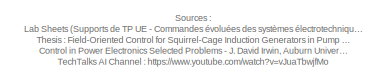
[diagram: root canvas - part 1/4, top center region]
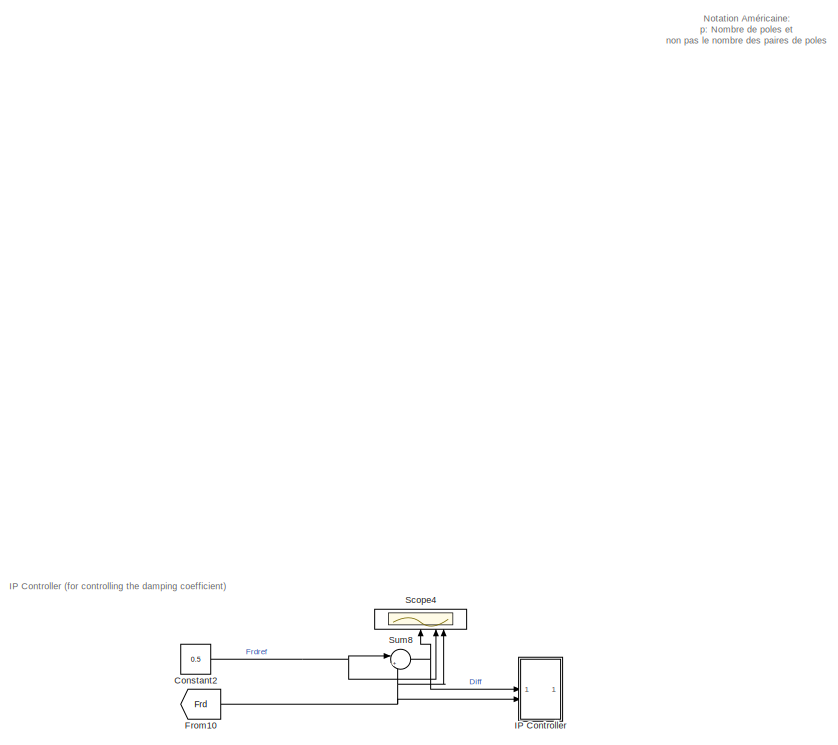
[diagram: root canvas - part 2/4, middle left region]
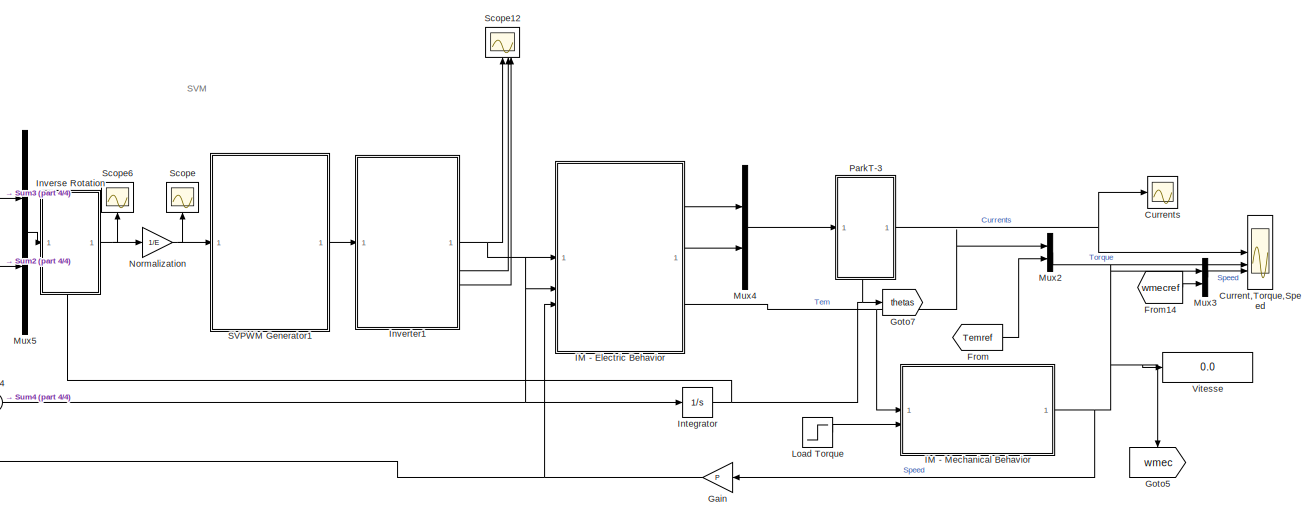
[diagram: root canvas - part 3/4, middle right region]
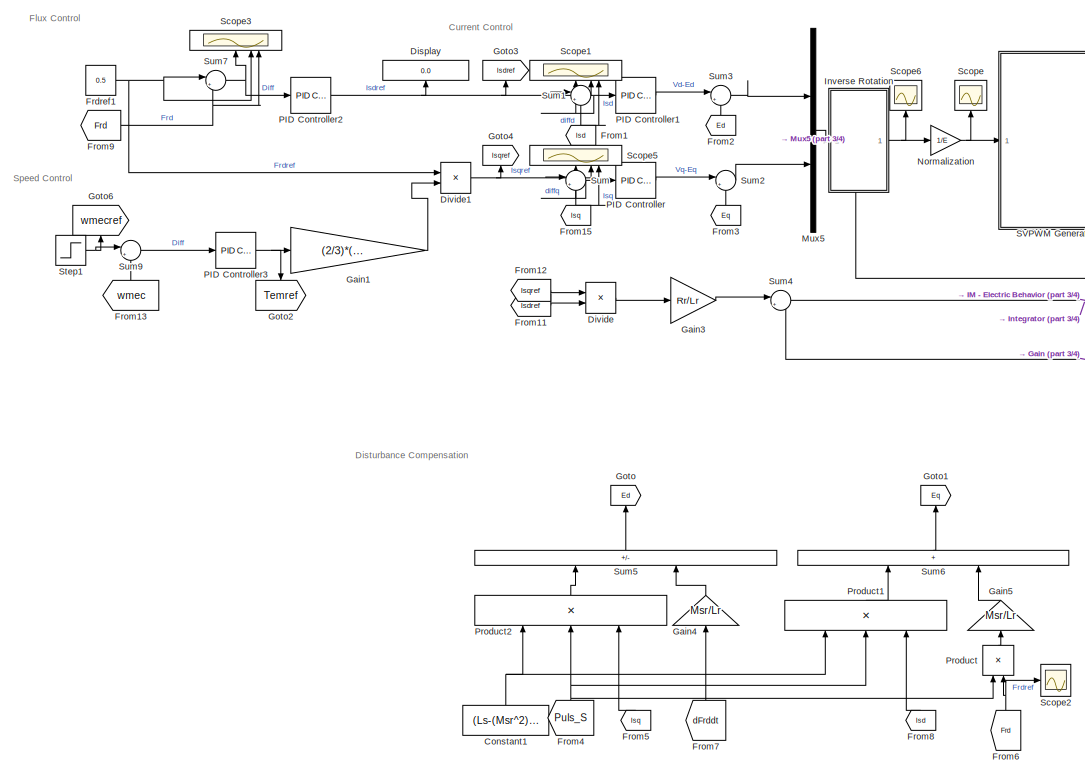
[diagram: root canvas - part 4/4, bottom center region]
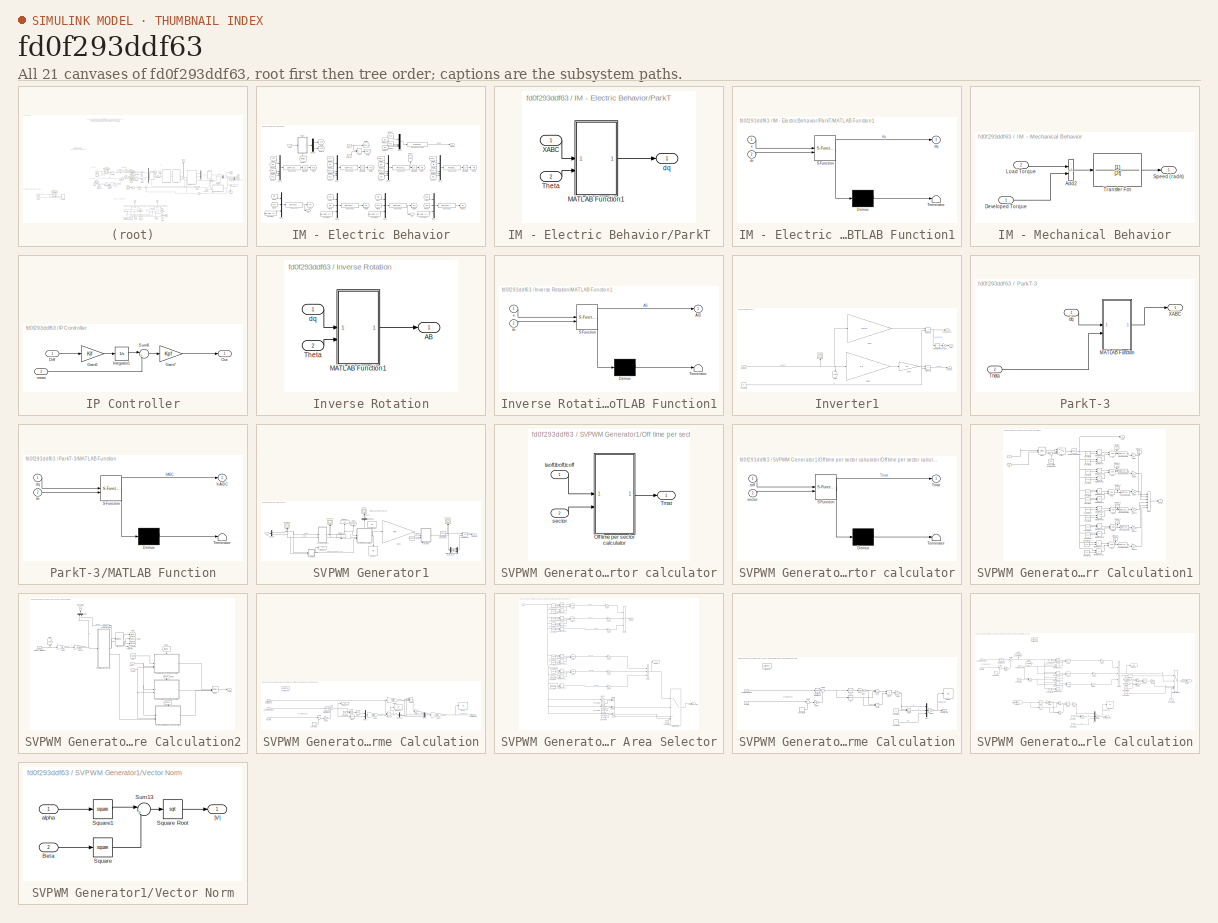
[diagram: thumbnail index - all 21 canvases of the model, root first then tree order]
MODEL slx_fd0f293ddf63
KIND model
CONFIG AbsTol = auto
CONFIG EnableMultiTasking = off
CONFIG FixedStep = 1e-5
CONFIG MaxStep = auto
CONFIG MinStep = auto
CONFIG RelTol = 1e-3
CONFIG SampleTimeConstraint = Unconstrained
CONFIG SolverName = ode4
CONFIG StartTime = 0.0
CONFIG StopTime = 10
BLOCK [Constant] Constant1
  NameLocation = right
  Value = (Ls-(Msr^2)/Lr)
BLOCK [Constant] Constant2
  Commented = on
  Value = 0.5
BLOCK [Scope] Current,Torque,Speed
  Floating = off
  NumInputPorts = 3
  ScopeSpecificationString = Simulink.scopes.TimeScopeBlockCfg('CurrentConfiguration', extmgr.ConfigurationSet(extmgr.Configuration('Core','General UI',true,'FigureColor','[1 1 1]'),extmgr.Configuration('Core','Source UI',true),extmgr.Configuration('Sources','WiredSimulink',true,'DataLoggingVariableName','ScopeData1'),extmgr.Configuration('Visuals','Time Domain',true,'SerializedDisplays',{struct('MinYLimReal','-6.31169','MaxY...<+3434ch>
BLOCK [Scope] Currents
  Floating = off
  NumInputPorts = 1
  ScopeSpecificationString = Simulink.scopes.TimeScopeBlockCfg('CurrentConfiguration', extmgr.ConfigurationSet(extmgr.Configuration('Core','General UI',true),extmgr.Configuration('Core','Source UI',true),extmgr.Configuration('Sources','WiredSimulink',true,'DataLoggingVariableName','ScopeData2'),extmgr.Configuration('Visuals','Time Domain',true,'SerializedDisplays',{struct('MinYLimReal','-6.30353','MaxYLimReal','9.10535','YLab...<+1468ch>
BLOCK [Display] Display
  Decimation = 1
  NameLocation = right
BLOCK [Product] Divide
  Inputs = */
BLOCK [Product] Divide1
  Inputs = /*
BLOCK [Constant] Frdref1
  Value = 0.5
BLOCK [From] From
  GotoTag = Temref
BLOCK [From] From1
  GotoTag = Isd
  NameLocation = right
  TagVisibility = global
BLOCK [From] From10
  Commented = on
  GotoTag = Frd
  TagVisibility = global
BLOCK [From] From11
  GotoTag = Isdref
BLOCK [From] From12
  GotoTag = Isqref
BLOCK [From] From13
  GotoTag = wmec
  NameLocation = right
BLOCK [From] From14
  GotoTag = wmecref
BLOCK [From] From15
  GotoTag = Isq
  NameLocation = right
  TagVisibility = global
BLOCK [From] From2
  GotoTag = Ed
  NameLocation = right
BLOCK [From] From3
  GotoTag = Eq
  NameLocation = right
BLOCK [From] From4
  GotoTag = Puls_S
  NameLocation = right
  TagVisibility = global
BLOCK [From] From5
  GotoTag = Isq
  NameLocation = right
  TagVisibility = global
BLOCK [From] From6
  GotoTag = Frd
  NameLocation = right
  TagVisibility = global
BLOCK [From] From7
  GotoTag = dFrddt
  NameLocation = right
  TagVisibility = global
BLOCK [From] From8
  GotoTag = Isd
  NameLocation = right
  TagVisibility = global
BLOCK [From] From9
  GotoTag = Frd
  TagVisibility = global
BLOCK [Gain] Gain
  Gain = P
BLOCK [Gain] Gain1
  Gain = (2/3)*(1/P)*(Lr/Msr)
BLOCK [Gain] Gain3
  Gain = Rr/Lr
BLOCK [Gain] Gain4
  Gain = Msr/Lr
  NameLocation = right
BLOCK [Gain] Gain5
  Gain = Msr/Lr
  NameLocation = right
BLOCK [Goto] Goto
  GotoTag = Ed
  NameLocation = right
BLOCK [Goto] Goto1
  GotoTag = Eq
  NameLocation = right
BLOCK [Goto] Goto2
  GotoTag = Temref
  NameLocation = left
BLOCK [Goto] Goto3
  GotoTag = Isdref
  NameLocation = right
BLOCK [Goto] Goto4
  GotoTag = Isqref
  NameLocation = right
BLOCK [Goto] Goto5
  GotoTag = wmec
  NameLocation = left
BLOCK [Goto] Goto6
  GotoTag = wmecref
  NameLocation = right
BLOCK [Goto] Goto7
  GotoTag = thetas
  TagVisibility = global
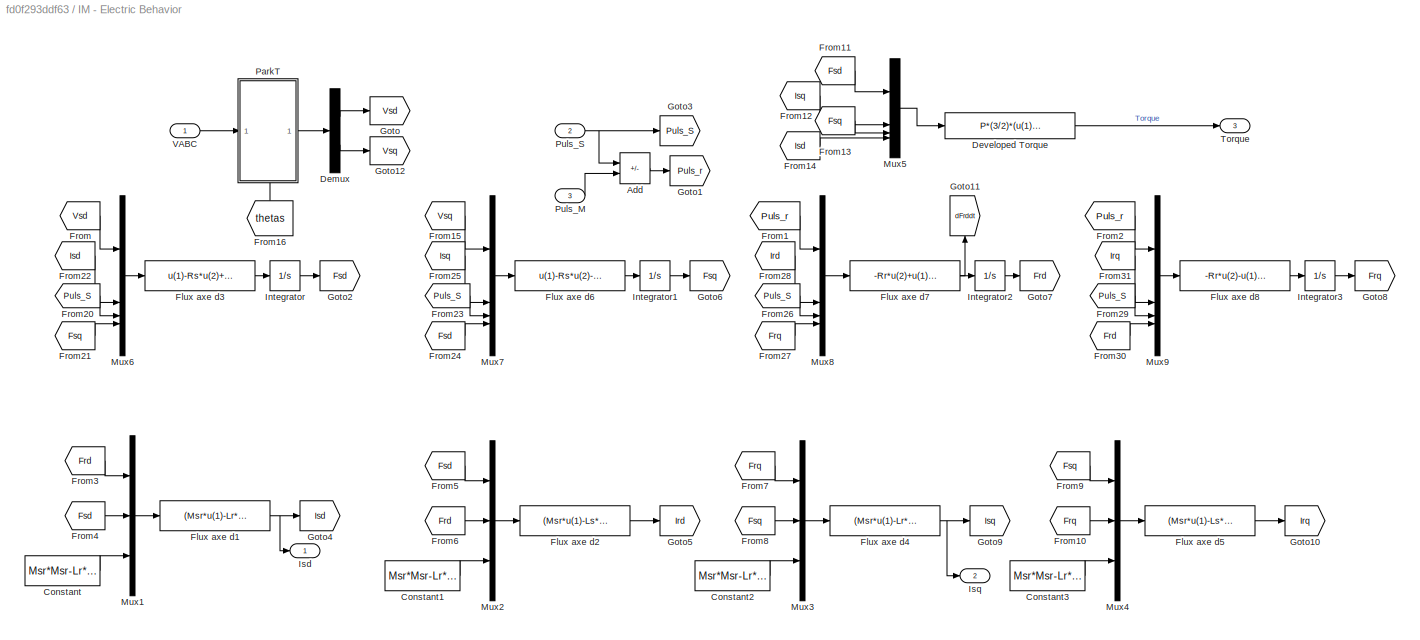
BLOCK [SubSystem] IM - Electric Behavior
BLOCK [Sum] IM - Electric Behavior/Add
  IconShape = rectangular
  Inputs = +-
BLOCK [Constant] IM - Electric Behavior/Constant
  Value = Msr*Msr-Lr*Ls
BLOCK [Constant] IM - Electric Behavior/Constant1
  Value = Msr*Msr-Lr*Ls
BLOCK [Constant] IM - Electric Behavior/Constant2
  Value = Msr*Msr-Lr*Ls
BLOCK [Constant] IM - Electric Behavior/Constant3
  Value = Msr*Msr-Lr*Ls
BLOCK [Demux] IM - Electric Behavior/Demux
  Outputs = 2
BLOCK [Fcn] IM - Electric Behavior/Developed Torque
  Expr = P*(3/2)*(u(1)*u(2)-u(3)*u(4))
BLOCK [Fcn] IM - Electric Behavior/Flux axe d1
  Expr = (Msr*u(1)-Lr*u(2))/u(3)
BLOCK [Fcn] IM - Electric Behavior/Flux axe d2
  Expr = (Msr*u(1)-Ls*u(2))/u(3)
BLOCK [Fcn] IM - Electric Behavior/Flux axe d3
  Expr = u(1)-Rs*u(2)+u(3)*u(4)
BLOCK [Fcn] IM - Electric Behavior/Flux axe d4
  Expr = (Msr*u(1)-Lr*u(2))/u(3)
BLOCK [Fcn] IM - Electric Behavior/Flux axe d5
  Expr = (Msr*u(1)-Ls*u(2))/u(3)
BLOCK [Fcn] IM - Electric Behavior/Flux axe d6
  Expr = u(1)-Rs*u(2)-u(3)*u(4)
BLOCK [Fcn] IM - Electric Behavior/Flux axe d7
  Expr = -Rr*u(2)+u(1)*u(4)
BLOCK [Fcn] IM - Electric Behavior/Flux axe d8
  Expr = -Rr*u(2)-u(1)*u(4)
BLOCK [From] IM - Electric Behavior/From
  GotoTag = Vsd
BLOCK [From] IM - Electric Behavior/From1
  GotoTag = Puls_r
BLOCK [From] IM - Electric Behavior/From10
  GotoTag = Frq
BLOCK [From] IM - Electric Behavior/From11
  GotoTag = Fsd
BLOCK [From] IM - Electric Behavior/From12
  GotoTag = Isq
  TagVisibility = global
BLOCK [From] IM - Electric Behavior/From13
  GotoTag = Fsq
BLOCK [From] IM - Electric Behavior/From14
  GotoTag = Isd
  TagVisibility = global
BLOCK [From] IM - Electric Behavior/From15
  GotoTag = Vsq
BLOCK [From] IM - Electric Behavior/From16
  GotoTag = thetas
  NameLocation = right
  TagVisibility = global
BLOCK [From] IM - Electric Behavior/From2
  GotoTag = Puls_r
BLOCK [From] IM - Electric Behavior/From20
  GotoTag = Puls_S
  IconDisplay = Signal name
  TagVisibility = global
BLOCK [From] IM - Electric Behavior/From21
  GotoTag = Fsq
BLOCK [From] IM - Electric Behavior/From22
  GotoTag = Isd
  TagVisibility = global
BLOCK [From] IM - Electric Behavior/From23
  GotoTag = Puls_S
  IconDisplay = Signal name
  TagVisibility = global
BLOCK [From] IM - Electric Behavior/From24
  GotoTag = Fsd
BLOCK [From] IM - Electric Behavior/From25
  GotoTag = Isq
  TagVisibility = global
BLOCK [From] IM - Electric Behavior/From26
  GotoTag = Puls_S
  IconDisplay = Signal name
  TagVisibility = global
BLOCK [From] IM - Electric Behavior/From27
  GotoTag = Frq
BLOCK [From] IM - Electric Behavior/From28
  GotoTag = Ird
BLOCK [From] IM - Electric Behavior/From29
  GotoTag = Puls_S
  IconDisplay = Signal name
  TagVisibility = global
BLOCK [From] IM - Electric Behavior/From3
  GotoTag = Frd
  TagVisibility = global
BLOCK [From] IM - Electric Behavior/From30
  GotoTag = Frd
  TagVisibility = global
BLOCK [From] IM - Electric Behavior/From31
  GotoTag = Irq
BLOCK [From] IM - Electric Behavior/From4
  GotoTag = Fsd
BLOCK [From] IM - Electric Behavior/From5
  GotoTag = Fsd
BLOCK [From] IM - Electric Behavior/From6
  GotoTag = Frd
  TagVisibility = global
BLOCK [From] IM - Electric Behavior/From7
  GotoTag = Frq
BLOCK [From] IM - Electric Behavior/From8
  GotoTag = Fsq
BLOCK [From] IM - Electric Behavior/From9
  GotoTag = Fsq
BLOCK [Goto] IM - Electric Behavior/Goto
  GotoTag = Vsd
BLOCK [Goto] IM - Electric Behavior/Goto1
  GotoTag = Puls_r
BLOCK [Goto] IM - Electric Behavior/Goto10
  GotoTag = Irq
BLOCK [Goto] IM - Electric Behavior/Goto11
  GotoTag = dFrddt
  NameLocation = right
  TagVisibility = global
BLOCK [Goto] IM - Electric Behavior/Goto12
  GotoTag = Vsq
BLOCK [Goto] IM - Electric Behavior/Goto2
  GotoTag = Fsd
BLOCK [Goto] IM - Electric Behavior/Goto3
  GotoTag = Puls_S
  TagVisibility = global
BLOCK [Goto] IM - Electric Behavior/Goto4
  GotoTag = Isd
  TagVisibility = global
BLOCK [Goto] IM - Electric Behavior/Goto5
  GotoTag = Ird
BLOCK [Goto] IM - Electric Behavior/Goto6
  GotoTag = Fsq
BLOCK [Goto] IM - Electric Behavior/Goto7
  GotoTag = Frd
  TagVisibility = global
BLOCK [Goto] IM - Electric Behavior/Goto8
  GotoTag = Frq
BLOCK [Goto] IM - Electric Behavior/Goto9
  GotoTag = Isq
  TagVisibility = global
BLOCK [Integrator] IM - Electric Behavior/Integrator
BLOCK [Integrator] IM - Electric Behavior/Integrator1
BLOCK [Integrator] IM - Electric Behavior/Integrator2
BLOCK [Integrator] IM - Electric Behavior/Integrator3
BLOCK [Outport] IM - Electric Behavior/Isd
BLOCK [Outport] IM - Electric Behavior/Isq
  Port = 2
BLOCK [Mux] IM - Electric Behavior/Mux1
  DisplayOption = bar
  Inputs = 3
BLOCK [Mux] IM - Electric Behavior/Mux2
  DisplayOption = bar
  Inputs = 3
BLOCK [Mux] IM - Electric Behavior/Mux3
  DisplayOption = bar
  Inputs = 3
BLOCK [Mux] IM - Electric Behavior/Mux4
  DisplayOption = bar
  Inputs = 3
BLOCK [Mux] IM - Electric Behavior/Mux5
  DisplayOption = bar
BLOCK [Mux] IM - Electric Behavior/Mux6
  DisplayOption = bar
BLOCK [Mux] IM - Electric Behavior/Mux7
  DisplayOption = bar
BLOCK [Mux] IM - Electric Behavior/Mux8
  DisplayOption = bar
BLOCK [Mux] IM - Electric Behavior/Mux9
  DisplayOption = bar
BLOCK [SubSystem] IM - Electric Behavior/ParkT
  PortSchema = {"entries":[{"content":{"sides":[{"content":{"connectorIds":["In1"]},"type":"ConnectorPlacement.EquallySpacedRectSide","uuid":"228dfcfc-5d6b-4d2b-a954-ee5f3fee8856"},{"content":{"connectorIds":["Out1"],"side":"RIGHT"},"type":"ConnectorPlacement.EquallySpacedRectSide","uuid":"1b1b4c30-bceb-4aa5-9a3a-183aa9b64903"},{"content":{"connectorIds":[],"side":"TOP"},"type":"ConnectorPlacement.EquallySpacedR...<+389ch>
BLOCK [SubSystem] IM - Electric Behavior/ParkT/MATLAB Function1
  ErrorFcn = Stateflow.Translate.translate
  PermitHierarchicalResolution = ExplicitOnly
  SFBlockType = MATLAB Function
  TreatAsAtomicUnit = on
BLOCK [Demux] IM - Electric Behavior/ParkT/MATLAB Function1/ Demux 
  Outputs = 1
BLOCK [S-Function] IM - Electric Behavior/ParkT/MATLAB Function1/ SFunction 
  EnableBusSupport = on
  FunctionName = sf_sfun
  PortCounts = [2 2]
  SFcnIsStateOwnerBlock = off
  SFunctionDeploymentMode = off
  Tag = Stateflow S-Function 5
BLOCK [Terminator] IM - Electric Behavior/ParkT/MATLAB Function1/ Terminator 
BLOCK [Outport] IM - Electric Behavior/ParkT/MATLAB Function1/dq
BLOCK [Inport] IM - Electric Behavior/ParkT/MATLAB Function1/th
  Port = 2
BLOCK [Inport] IM - Electric Behavior/ParkT/MATLAB Function1/x
BLOCK [Inport] IM - Electric Behavior/ParkT/Theta
  Port = 2
BLOCK [Inport] IM - Electric Behavior/ParkT/XABC
BLOCK [Outport] IM - Electric Behavior/ParkT/dq
BLOCK [Inport] IM - Electric Behavior/Puls_M
  Port = 3
BLOCK [Inport] IM - Electric Behavior/Puls_S
  Port = 2
BLOCK [Outport] IM - Electric Behavior/Torque
  Port = 3
BLOCK [Inport] IM - Electric Behavior/VABC
BLOCK [SubSystem] IM - Mechanical Behavior
BLOCK [Sum] IM - Mechanical Behavior/Add2
  IconShape = rectangular
  Inputs = -+
BLOCK [Inport] IM - Mechanical Behavior/Developed Torque
BLOCK [Inport] IM - Mechanical Behavior/Load Torque
  Port = 2
BLOCK [Outport] IM - Mechanical Behavior/Speed (rad//s)
BLOCK [TransferFcn] IM - Mechanical Behavior/Transfer Fcn
  Denominator = [J f]
BLOCK [SubSystem] IP Controller
  Commented = on
BLOCK [Inport] IP Controller/Diff
BLOCK [Gain] IP Controller/Gain6
  Gain = Kif
BLOCK [Gain] IP Controller/Gain7
  Gain = Kpf
BLOCK [Integrator] IP Controller/Integrator1
  InitialCondition = 0.5/Msr
BLOCK [Outport] IP Controller/Out
BLOCK [Sum] IP Controller/Sum8
  Inputs = |+-
BLOCK [Inport] IP Controller/meas
  Port = 2
BLOCK [Integrator] Integrator
BLOCK [SubSystem] Inverse Rotation
  PortSchema = {"entries":[{"content":{"sides":[{"content":{"connectorIds":["In1"]},"type":"ConnectorPlacement.EquallySpacedRectSide","uuid":"228dfcfc-5d6b-4d2b-a954-ee5f3fee8856"},{"content":{"connectorIds":["Out1"],"side":"RIGHT"},"type":"ConnectorPlacement.EquallySpacedRectSide","uuid":"1b1b4c30-bceb-4aa5-9a3a-183aa9b64903"},{"content":{"connectorIds":[],"side":"TOP"},"type":"ConnectorPlacement.EquallySpacedR...<+389ch>
BLOCK [Outport] Inverse Rotation/AB
BLOCK [SubSystem] Inverse Rotation/MATLAB Function1
  ErrorFcn = Stateflow.Translate.translate
  PermitHierarchicalResolution = ExplicitOnly
  SFBlockType = MATLAB Function
  TreatAsAtomicUnit = on
BLOCK [Demux] Inverse Rotation/MATLAB Function1/ Demux 
  Outputs = 1
BLOCK [S-Function] Inverse Rotation/MATLAB Function1/ SFunction 
  EnableBusSupport = on
  FunctionName = sf_sfun
  PortCounts = [2 2]
  SFcnIsStateOwnerBlock = off
  SFunctionDeploymentMode = off
  Tag = Stateflow S-Function 1
BLOCK [Terminator] Inverse Rotation/MATLAB Function1/ Terminator 
BLOCK [Outport] Inverse Rotation/MATLAB Function1/AB
BLOCK [Inport] Inverse Rotation/MATLAB Function1/th
  Port = 2
BLOCK [Inport] Inverse Rotation/MATLAB Function1/x
BLOCK [Inport] Inverse Rotation/Theta
  Port = 2
BLOCK [Inport] Inverse Rotation/dq
BLOCK [SubSystem] Inverter1
BLOCK [Inport] Inverter1/Ca,Cb,Cc
BLOCK [Constant] Inverter1/Constant1
  Value = E
BLOCK [Gain] Inverter1/Gain
  Gain = 1/3
BLOCK [Gain] Inverter1/Gain1
  Gain = eye(3)
  Multiplication = Matrix(K*u)
BLOCK [Gain] Inverter1/Gain2
  Gain = [2 -1 -1; -1 2 -1; -1 -1 2]
  Multiplication = Matrix(K*u)
BLOCK [Gain] Inverter1/Gain6
  Gain = 1/3
BLOCK [Goto] Inverter1/Goto8
  GotoTag = Cmd
  NameLocation = left
BLOCK [Product] Inverter1/Product1
BLOCK [Product] Inverter1/Product3
BLOCK [Scope] Inverter1/Scope6
  Floating = off
  NameLocation = right
  NumInputPorts = 1
  ScopeSpecificationString = Simulink.scopes.TimeScopeBlockCfg('CurrentConfiguration', extmgr.ConfigurationSet(extmgr.Configuration('Core','General UI',true),extmgr.Configuration('Core','Source UI',true),extmgr.Configuration('Sources','WiredSimulink',true,'DataLoggingVariableName','ScopeData1'),extmgr.Configuration('Visuals','Time Domain',true,'SerializedDisplays',{struct('MinYLimReal','-0.02445','MaxYLimReal','1.00221','YLab...<+1466ch>
BLOCK [Sum] Inverter1/Sum of Elements
  IconShape = rectangular
  Inputs = +
BLOCK [Outport] Inverter1/UN0
  Port = 3
BLOCK [Outport] Inverter1/Ua0,Ub0,Uc0
  Port = 2
BLOCK [Outport] Inverter1/Va,Vb,Vc
BLOCK [Step] Load Torque
  After = 0.5
  SampleTime = 0
  Time = 2
BLOCK [Mux] Mux2
  DisplayOption = bar
  Inputs = 2
BLOCK [Mux] Mux3
  DisplayOption = bar
  Inputs = 2
BLOCK [Mux] Mux4
  DisplayOption = bar
  Inputs = 2
BLOCK [Mux] Mux5
  DisplayOption = bar
  Inputs = 2
BLOCK [Gain] Normalization
  Gain = 1/E
BLOCK [Reference] PID Controller  REF=slpidlib/PID Controller
  SourceBlock = slpidlib/PID Controller
  SourceType = PID 1dof
BLOCK [Reference] PID Controller1  REF=slpidlib/PID Controller
  SourceBlock = slpidlib/PID Controller
  SourceType = PID 1dof
BLOCK [Reference] PID Controller2  REF=slpidlib/PID Controller
  SourceBlock = slpidlib/PID Controller
  SourceType = PID 1dof
BLOCK [Reference] PID Controller3  REF=slpidlib/PID Controller
  SourceBlock = slpidlib/PID Controller
  SourceType = PID 1dof
BLOCK [SubSystem] ParkT-3
  PortSchema = {"entries":[{"content":{"sides":[{"content":{"connectorIds":["In1"]},"type":"ConnectorPlacement.EquallySpacedRectSide","uuid":"ed5ee07b-b316-480c-b9ec-652acf4aaee1"},{"content":{"connectorIds":["Out1"],"side":"RIGHT"},"type":"ConnectorPlacement.EquallySpacedRectSide","uuid":"52d50e66-916b-4a4a-9cee-3d7b4015ccc4"},{"content":{"connectorIds":[],"side":"TOP"},"type":"ConnectorPlacement.EquallySpacedR...<+389ch>
BLOCK [SubSystem] ParkT-3/MATLAB Function
  ErrorFcn = Stateflow.Translate.translate
  PermitHierarchicalResolution = ExplicitOnly
  SFBlockType = MATLAB Function
  TreatAsAtomicUnit = on
BLOCK [Demux] ParkT-3/MATLAB Function/ Demux 
  Outputs = 1
BLOCK [S-Function] ParkT-3/MATLAB Function/ SFunction 
  EnableBusSupport = on
  FunctionName = sf_sfun
  PortCounts = [2 2]
  SFcnIsStateOwnerBlock = off
  SFunctionDeploymentMode = off
  Tag = Stateflow S-Function 7
BLOCK [Terminator] ParkT-3/MATLAB Function/ Terminator 
BLOCK [Outport] ParkT-3/MATLAB Function/XABC
BLOCK [Inport] ParkT-3/MATLAB Function/dq
BLOCK [Inport] ParkT-3/MATLAB Function/th
  Port = 2
BLOCK [Inport] ParkT-3/Theta
  Port = 2
BLOCK [Outport] ParkT-3/XABC
BLOCK [Inport] ParkT-3/dq
BLOCK [Product] Product
  NameLocation = right
BLOCK [Product] Product1
  Inputs = 3
  NameLocation = right
BLOCK [Product] Product2
  Inputs = 3
  NameLocation = right
BLOCK [SubSystem] SVPWM Generator1
BLOCK [Inport] SVPWM Generator1/AB
BLOCK [Outport] SVPWM Generator1/Ca,Cb,Cc
BLOCK [Demux] SVPWM Generator1/Correcting Phase Sequence
  Outputs = 3
BLOCK [Demux] SVPWM Generator1/Demux
  Outputs = 2
BLOCK [Demux] SVPWM Generator1/Demux1
  NameLocation = right
  Outputs = 2
BLOCK [Display] SVPWM Generator1/Display
  Decimation = 1
BLOCK [Display] SVPWM Generator1/Display3
  Decimation = 1
  NameLocation = right
BLOCK [Display] SVPWM Generator1/Display4
  Decimation = 1
  NameLocation = right
BLOCK [Display] SVPWM Generator1/Display5
  Decimation = 1
BLOCK [Display] SVPWM Generator1/Display6
  Decimation = 1
  NameLocation = left
BLOCK [From] SVPWM Generator1/From16
  GotoTag = Sector
BLOCK [Gain] SVPWM Generator1/Gain6
  Gain = Poff
  Multiplication = Matrix(K*u)
BLOCK [Goto] SVPWM Generator1/Goto8
  GotoTag = Sector
  NameLocation = right
BLOCK [RelationalOperator] SVPWM Generator1/GreaterThan
  InputSameDT = off
  OutDataTypeStr = boolean
  RndMeth = Simplest
BLOCK [Mux] SVPWM Generator1/Mux
  DisplayOption = bar
  Inputs = 3
BLOCK [SubSystem] SVPWM Generator1/Off time per sector calculator
BLOCK [SubSystem] SVPWM Generator1/Off time per sector calculator/Off time per sector calculator
  ErrorFcn = Stateflow.Translate.translate
  PermitHierarchicalResolution = ExplicitOnly
  SFBlockType = MATLAB Function
  TreatAsAtomicUnit = on
BLOCK [Demux] SVPWM Generator1/Off time per sector calculator/Off time per sector calculator/ Demux 
  Outputs = 1
BLOCK [S-Function] SVPWM Generator1/Off time per sector calculator/Off time per sector calculator/ SFunction 
  EnableBusSupport = on
  FunctionName = sf_sfun
  PortCounts = [2 2]
  SFcnIsStateOwnerBlock = off
  SFunctionDeploymentMode = off
  Tag = Stateflow S-Function 2
BLOCK [Terminator] SVPWM Generator1/Off time per sector calculator/Off time per sector calculator/ Terminator 
BLOCK [Outport] SVPWM Generator1/Off time per sector calculator/Off time per sector calculator/Tmat
BLOCK [Inport] SVPWM Generator1/Off time per sector calculator/Off time per sector calculator/sector
  Port = 2
BLOCK [Inport] SVPWM Generator1/Off time per sector calculator/Off time per sector calculator/toff
BLOCK [Outport] SVPWM Generator1/Off time per sector calculator/Tmat
BLOCK [Inport] SVPWM Generator1/Off time per sector calculator/sector
  Port = 2
BLOCK [Inport] SVPWM Generator1/Off time per sector calculator/taoff,tboff,tcoff
BLOCK [Reference] SVPWM Generator1/Repeating Sequence  REF=simulink/Sources/Repeating
Sequence
  SourceBlock = simulink/Sources/Repeating\nSequence
  SourceType = Repeating table
BLOCK [Scope] SVPWM Generator1/Scope
  Floating = off
  NameLocation = right
  NumInputPorts = 2
  ScopeSpecificationString = Simulink.scopes.TimeScopeBlockCfg('CurrentConfiguration', extmgr.ConfigurationSet(extmgr.Configuration('Core','General UI',true),extmgr.Configuration('Core','Source UI',true),extmgr.Configuration('Sources','WiredSimulink',true,'DataLoggingVariableName','ScopeData5'),extmgr.Configuration('Visuals','Time Domain',true,'SerializedDisplays',{struct('MinYLimReal','-28.65899','MaxYLimReal','257.93233','Y...<+2199ch>
BLOCK [Scope] SVPWM Generator1/Scope10
  Floating = off
  NameLocation = right
  NumInputPorts = 2
  ScopeSpecificationString = Simulink.scopes.TimeScopeBlockCfg('CurrentConfiguration', extmgr.ConfigurationSet(extmgr.Configuration('Core','General UI',true),extmgr.Configuration('Core','Source UI',true),extmgr.Configuration('Sources','WiredSimulink',true,'DataLoggingVariableName','ScopeData5'),extmgr.Configuration('Visuals','Time Domain',true,'SerializedDisplays',{struct('MinYLimReal','-2.48532','MaxYLimReal','3.54478','YLab...<+1762ch>
BLOCK [Scope] SVPWM Generator1/Scope13
  Floating = off
  NameLocation = right
  NumInputPorts = 2
  ScopeSpecificationString = Simulink.scopes.TimeScopeBlockCfg('CurrentConfiguration', extmgr.ConfigurationSet(extmgr.Configuration('Core','General UI',true),extmgr.Configuration('Core','Source UI',true),extmgr.Configuration('Sources','WiredSimulink',true,'DataLoggingVariableName','ScopeData8'),extmgr.Configuration('Visuals','Time Domain',true,'SerializedDisplays',{struct('MinYLimReal','-0.125','MaxYLimReal','1.125','YLabelRe...<+2173ch>
BLOCK [Scope] SVPWM Generator1/Scope15
  Floating = off
  NameLocation = right
  NumInputPorts = 2
  ScopeSpecificationString = Simulink.scopes.TimeScopeBlockCfg('CurrentConfiguration', extmgr.ConfigurationSet(extmgr.Configuration('Core','General UI',true),extmgr.Configuration('Core','Source UI',true),extmgr.Configuration('Sources','WiredSimulink',true,'DataLoggingVariableName','ScopeData2'),extmgr.Configuration('Visuals','Time Domain',true,'SerializedDisplays',{struct('MinYLimReal','0.70823','MaxYLimReal','6.625','YLabelR...<+2440ch>
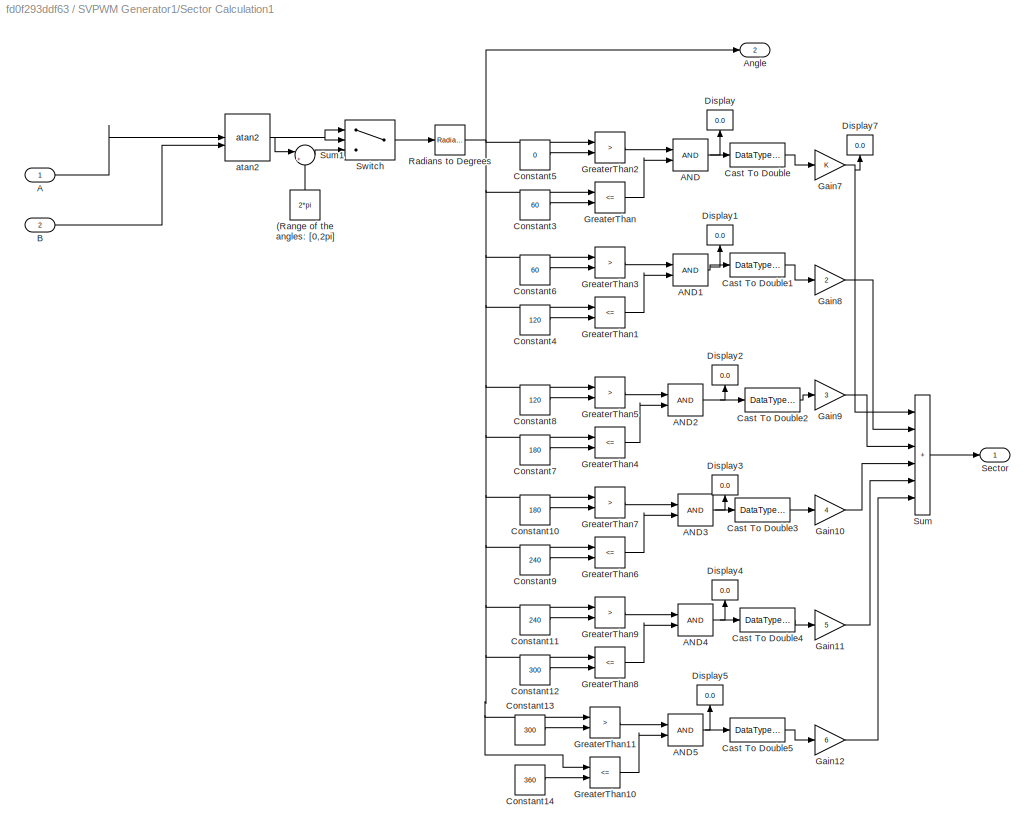
BLOCK [SubSystem] SVPWM Generator1/Sector Calculation1
BLOCK [Constant] SVPWM Generator1/Sector Calculation1/(Range of the angles: [0,2pi]
  NameLocation = right
  Value = 2*pi
BLOCK [Inport] SVPWM Generator1/Sector Calculation1/A
BLOCK [Logic] SVPWM Generator1/Sector Calculation1/AND
  AllPortsSameDT = off
  IconShape = distinctive
  OutDataTypeStr = boolean
BLOCK [Logic] SVPWM Generator1/Sector Calculation1/AND1
  AllPortsSameDT = off
  IconShape = distinctive
  OutDataTypeStr = boolean
BLOCK [Logic] SVPWM Generator1/Sector Calculation1/AND2
  AllPortsSameDT = off
  IconShape = distinctive
  OutDataTypeStr = boolean
BLOCK [Logic] SVPWM Generator1/Sector Calculation1/AND3
  AllPortsSameDT = off
  IconShape = distinctive
  OutDataTypeStr = boolean
BLOCK [Logic] SVPWM Generator1/Sector Calculation1/AND4
  AllPortsSameDT = off
  IconShape = distinctive
  OutDataTypeStr = boolean
BLOCK [Logic] SVPWM Generator1/Sector Calculation1/AND5
  AllPortsSameDT = off
  IconShape = distinctive
  OutDataTypeStr = boolean
BLOCK [Outport] SVPWM Generator1/Sector Calculation1/Angle
  Port = 2
BLOCK [Inport] SVPWM Generator1/Sector Calculation1/B
  Port = 2
BLOCK [DataTypeConversion] SVPWM Generator1/Sector Calculation1/Cast To Double
  OutDataTypeStr = double
  RndMeth = Floor
  SaturateOnIntegerOverflow = off
BLOCK [DataTypeConversion] SVPWM Generator1/Sector Calculation1/Cast To Double1
  OutDataTypeStr = double
  RndMeth = Floor
  SaturateOnIntegerOverflow = off
BLOCK [DataTypeConversion] SVPWM Generator1/Sector Calculation1/Cast To Double2
  OutDataTypeStr = double
  RndMeth = Floor
  SaturateOnIntegerOverflow = off
BLOCK [DataTypeConversion] SVPWM Generator1/Sector Calculation1/Cast To Double3
  OutDataTypeStr = double
  RndMeth = Floor
  SaturateOnIntegerOverflow = off
BLOCK [DataTypeConversion] SVPWM Generator1/Sector Calculation1/Cast To Double4
  OutDataTypeStr = double
  RndMeth = Floor
  SaturateOnIntegerOverflow = off
BLOCK [DataTypeConversion] SVPWM Generator1/Sector Calculation1/Cast To Double5
  OutDataTypeStr = double
  RndMeth = Floor
  SaturateOnIntegerOverflow = off
BLOCK [Constant] SVPWM Generator1/Sector Calculation1/Constant10
  Value = 180
BLOCK [Constant] SVPWM Generator1/Sector Calculation1/Constant11
  Value = 240
BLOCK [Constant] SVPWM Generator1/Sector Calculation1/Constant12
  Value = 300
BLOCK [Constant] SVPWM Generator1/Sector Calculation1/Constant13
  Value = 300
BLOCK [Constant] SVPWM Generator1/Sector Calculation1/Constant14
  Value = 360
BLOCK [Constant] SVPWM Generator1/Sector Calculation1/Constant3
  Value = 60
BLOCK [Constant] SVPWM Generator1/Sector Calculation1/Constant4
  Value = 120
BLOCK [Constant] SVPWM Generator1/Sector Calculation1/Constant5
  Value = 0
BLOCK [Constant] SVPWM Generator1/Sector Calculation1/Constant6
  Value = 60
BLOCK [Constant] SVPWM Generator1/Sector Calculation1/Constant7
  Value = 180
BLOCK [Constant] SVPWM Generator1/Sector Calculation1/Constant8
  Value = 120
BLOCK [Constant] SVPWM Generator1/Sector Calculation1/Constant9
  Value = 240
BLOCK [Display] SVPWM Generator1/Sector Calculation1/Display
  Decimation = 1
  NameLocation = right
BLOCK [Display] SVPWM Generator1/Sector Calculation1/Display1
  Decimation = 1
  NameLocation = right
BLOCK [Display] SVPWM Generator1/Sector Calculation1/Display2
  Decimation = 1
  NameLocation = right
BLOCK [Display] SVPWM Generator1/Sector Calculation1/Display3
  Decimation = 1
  NameLocation = right
BLOCK [Display] SVPWM Generator1/Sector Calculation1/Display4
  Decimation = 1
  NameLocation = right
BLOCK [Display] SVPWM Generator1/Sector Calculation1/Display5
  Decimation = 1
  NameLocation = right
BLOCK [Display] SVPWM Generator1/Sector Calculation1/Display7
  Decimation = 1
  NameLocation = right
BLOCK [Gain] SVPWM Generator1/Sector Calculation1/Gain10
  Gain = 4
BLOCK [Gain] SVPWM Generator1/Sector Calculation1/Gain11
  Gain = 5
BLOCK [Gain] SVPWM Generator1/Sector Calculation1/Gain12
  Gain = 6
BLOCK [Gain] SVPWM Generator1/Sector Calculation1/Gain7
BLOCK [Gain] SVPWM Generator1/Sector Calculation1/Gain8
  Gain = 2
BLOCK [Gain] SVPWM Generator1/Sector Calculation1/Gain9
  Gain = 3
BLOCK [RelationalOperator] SVPWM Generator1/Sector Calculation1/GreaterThan
  InputSameDT = off
  Operator = <=
  OutDataTypeStr = boolean
  RndMeth = Simplest
BLOCK [RelationalOperator] SVPWM Generator1/Sector Calculation1/GreaterThan1
  InputSameDT = off
  Operator = <=
  OutDataTypeStr = boolean
  RndMeth = Simplest
BLOCK [RelationalOperator] SVPWM Generator1/Sector Calculation1/GreaterThan10
  InputSameDT = off
  Operator = <=
  OutDataTypeStr = boolean
  RndMeth = Simplest
BLOCK [RelationalOperator] SVPWM Generator1/Sector Calculation1/GreaterThan11
  InputSameDT = off
  Operator = >
  OutDataTypeStr = boolean
  RndMeth = Simplest
BLOCK [RelationalOperator] SVPWM Generator1/Sector Calculation1/GreaterThan2
  InputSameDT = off
  Operator = >
  OutDataTypeStr = boolean
  RndMeth = Simplest
BLOCK [RelationalOperator] SVPWM Generator1/Sector Calculation1/GreaterThan3
  InputSameDT = off
  Operator = >
  OutDataTypeStr = boolean
  RndMeth = Simplest
BLOCK [RelationalOperator] SVPWM Generator1/Sector Calculation1/GreaterThan4
  InputSameDT = off
  Operator = <=
  OutDataTypeStr = boolean
  RndMeth = Simplest
BLOCK [RelationalOperator] SVPWM Generator1/Sector Calculation1/GreaterThan5
  InputSameDT = off
  Operator = >
  OutDataTypeStr = boolean
  RndMeth = Simplest
BLOCK [RelationalOperator] SVPWM Generator1/Sector Calculation1/GreaterThan6
  InputSameDT = off
  Operator = <=
  OutDataTypeStr = boolean
  RndMeth = Simplest
BLOCK [RelationalOperator] SVPWM Generator1/Sector Calculation1/GreaterThan7
  InputSameDT = off
  Operator = >
  OutDataTypeStr = boolean
  RndMeth = Simplest
BLOCK [RelationalOperator] SVPWM Generator1/Sector Calculation1/GreaterThan8
  InputSameDT = off
  Operator = <=
  OutDataTypeStr = boolean
  RndMeth = Simplest
BLOCK [RelationalOperator] SVPWM Generator1/Sector Calculation1/GreaterThan9
  InputSameDT = off
  Operator = >
  OutDataTypeStr = boolean
  RndMeth = Simplest
BLOCK [Reference] SVPWM Generator1/Sector Calculation1/Radians to Degrees  REF=simulink_extras/Transformations/Radians
to Degrees
  SourceBlock = simulink_extras/Transformations/Radians\nto Degrees
  SourceType = RadiansToDegrees
BLOCK [Outport] SVPWM Generator1/Sector Calculation1/Sector
BLOCK [Sum] SVPWM Generator1/Sector Calculation1/Sum
  IconShape = rectangular
  Inputs = ++++++
BLOCK [Sum] SVPWM Generator1/Sector Calculation1/Sum1
  Inputs = |++
BLOCK [Switch] SVPWM Generator1/Sector Calculation1/Switch
  Criteria = u2 > Threshold
  InputSameDT = off
  SaturateOnIntegerOverflow = off
BLOCK [Reference] SVPWM Generator1/Sector Calculation1/atan2  REF=mcbcontrolslib/atan2
  LibrarySourceBlock = mcblib/Controls/Math Transforms/atan2
  SourceBlock = mcbcontrolslib/atan2
  SourceType = atan2
BLOCK [SubSystem] SVPWM Generator1/Vactor Time Calculation2
  PortSchema = {"entries":[{"content":{"sides":[{"content":{"connectorIds":["In1","In2","In3"]},"type":"ConnectorPlacement.EquallySpacedRectSide","uuid":"b36ff3f1-d1b6-4cc1-9bbd-425fd19c1a38"},{"content":{"connectorIds":["Out1"],"side":"RIGHT"},"type":"ConnectorPlacement.EquallySpacedRectSide","uuid":"a221f04d-f18a-44c3-93a1-83af2c15186c"},{"content":{"connectorIds":["Out2"],"side":"TOP"},"type":"ConnectorPlacem...<+258ch>
BLOCK [Inport] SVPWM Generator1/Vactor Time Calculation2/Angle°1
  Port = 2
BLOCK [DataTypeConversion] SVPWM Generator1/Vactor Time Calculation2/Cast To Double
  NameLocation = top
  OutDataTypeStr = double
  RndMeth = Floor
  SaturateOnIntegerOverflow = off
BLOCK [From] SVPWM Generator1/Vactor Time Calculation2/From
  GotoTag = Norm
  TagVisibility = global
BLOCK [From] SVPWM Generator1/Vactor Time Calculation2/From1
  GotoTag = linear
  NameLocation = left
BLOCK [From] SVPWM Generator1/Vactor Time Calculation2/From2
  GotoTag = ModeI
  NameLocation = left
BLOCK [From] SVPWM Generator1/Vactor Time Calculation2/From3
  GotoTag = ModeII
  NameLocation = left
BLOCK [Gain] SVPWM Generator1/Vactor Time Calculation2/Gain1
  Gain = 1/2
BLOCK [Gain] SVPWM Generator1/Vactor Time Calculation2/Gain10
  Gain = 1/(2/pi)
BLOCK [Goto] SVPWM Generator1/Vactor Time Calculation2/Goto
  GotoTag = Norm
  NameLocation = right
  TagVisibility = global
BLOCK [Goto] SVPWM Generator1/Vactor Time Calculation2/Goto1
  GotoTag = linear
BLOCK [Goto] SVPWM Generator1/Vactor Time Calculation2/Goto2
  GotoTag = ModeI
BLOCK [Goto] SVPWM Generator1/Vactor Time Calculation2/Goto3
  GotoTag = ModeII
BLOCK [SubSystem] SVPWM Generator1/Vactor Time Calculation2/Linear Region Vector Time Calculation
  TreatAsAtomicUnit = on
BLOCK [ActionPort] SVPWM Generator1/Vactor Time Calculation2/Linear Region Vector Time Calculation/Action Port
  ActionPortLabel = case [ 0 ]:
  InitializeStates = reset
BLOCK [Inport] SVPWM Generator1/Vactor Time Calculation2/Linear Region Vector Time Calculation/Angle in Degrees 
  Port = 2
BLOCK [Constant] SVPWM Generator1/Vactor Time Calculation2/Linear Region Vector Time Calculation/Constant2
BLOCK [Constant] SVPWM Generator1/Vactor Time Calculation2/Linear Region Vector Time Calculation/Constant6
  Value = pi/3
BLOCK [Reference] SVPWM Generator1/Vactor Time Calculation2/Linear Region Vector Time Calculation/Degrees to Radians1  REF=simulink_extras/Transformations/Degrees to
Radians
  SourceBlock = simulink_extras/Transformations/Degrees to\nRadians
  SourceType = DegreesToRadians
BLOCK [Demux] SVPWM Generator1/Vactor Time Calculation2/Linear Region Vector Time Calculation/Demux2
  Outputs = 2
BLOCK [Display] SVPWM Generator1/Vactor Time Calculation2/Linear Region Vector Time Calculation/Display
  Decimation = 1
BLOCK [Display] SVPWM Generator1/Vactor Time Calculation2/Linear Region Vector Time Calculation/Display2
  Decimation = 1
BLOCK [Display] SVPWM Generator1/Vactor Time Calculation2/Linear Region Vector Time Calculation/Display3
  Decimation = 1
BLOCK [Gain] SVPWM Generator1/Vactor Time Calculation2/Linear Region Vector Time Calculation/Gain2
  Gain = pi/3
BLOCK [Gain] SVPWM Generator1/Vactor Time Calculation2/Linear Region Vector Time Calculation/Gain3
  Gain = 1/sqrt(3)
BLOCK [Gain] SVPWM Generator1/Vactor Time Calculation2/Linear Region Vector Time Calculation/Gain4
  Gain = 1/2
BLOCK [Gain] SVPWM Generator1/Vactor Time Calculation2/Linear Region Vector Time Calculation/Gain5
  Gain = sqrt(3)
BLOCK [Gain] SVPWM Generator1/Vactor Time Calculation2/Linear Region Vector Time Calculation/Gain9
  Gain = sqrt(3)
BLOCK [Mux] SVPWM Generator1/Vactor Time Calculation2/Linear Region Vector Time Calculation/Mux1
  DisplayOption = bar
  Inputs = 3
BLOCK [Mux] SVPWM Generator1/Vactor Time Calculation2/Linear Region Vector Time Calculation/Mux2
  DisplayOption = bar
  Inputs = 2
BLOCK [Inport] SVPWM Generator1/Vactor Time Calculation2/Linear Region Vector Time Calculation/Normalized Reference 
BLOCK [Product] SVPWM Generator1/Vactor Time Calculation2/Linear Region Vector Time Calculation/Product2
BLOCK [Inport] SVPWM Generator1/Vactor Time Calculation2/Linear Region Vector Time Calculation/Sector1
  Port = 3
BLOCK [Trigonometry] SVPWM Generator1/Vactor Time Calculation2/Linear Region Vector Time Calculation/Sin2
BLOCK [Trigonometry] SVPWM Generator1/Vactor Time Calculation2/Linear Region Vector Time Calculation/Sin3
BLOCK [Sum] SVPWM Generator1/Vactor Time Calculation2/Linear Region Vector Time Calculation/Sum2
  Inputs = |+-
BLOCK [Sum] SVPWM Generator1/Vactor Time Calculation2/Linear Region Vector Time Calculation/Sum3
  Inputs = |+-
BLOCK [Sum] SVPWM Generator1/Vactor Time Calculation2/Linear Region Vector Time Calculation/Sum4
  IconShape = rectangular
  Inputs = -+
BLOCK [Sum] SVPWM Generator1/Vactor Time Calculation2/Linear Region Vector Time Calculation/Sum5
  IconShape = rectangular
  Inputs = --+
BLOCK [Outport] SVPWM Generator1/Vactor Time Calculation2/Linear Region Vector Time Calculation/t0//2,t1,t2 (norm)
BLOCK [Merge] SVPWM Generator1/Vactor Time Calculation2/Merge
  Inputs = 3
BLOCK [Outport] SVPWM Generator1/Vactor Time Calculation2/Modulation
  NameLocation = right
  Port = 2
BLOCK [Mux] SVPWM Generator1/Vactor Time Calculation2/Mux
  DisplayOption = bar
  Inputs = 2
  NameLocation = right
BLOCK [Inport] SVPWM Generator1/Vactor Time Calculation2/Normalized Reference Amplitudes
  Port = 3
BLOCK [SubSystem] SVPWM Generator1/Vactor Time Calculation2/Operating Area Selector
BLOCK [Logic] SVPWM Generator1/Vactor Time Calculation2/Operating Area Selector/AND
  AllPortsSameDT = off
  IconShape = distinctive
  OutDataTypeStr = boolean
BLOCK [Logic] SVPWM Generator1/Vactor Time Calculation2/Operating Area Selector/AND1
  AllPortsSameDT = off
  IconShape = distinctive
  OutDataTypeStr = boolean
BLOCK [Logic] SVPWM Generator1/Vactor Time Calculation2/Operating Area Selector/AND2
  AllPortsSameDT = off
  IconShape = distinctive
  OutDataTypeStr = boolean
BLOCK [Logic] SVPWM Generator1/Vactor Time Calculation2/Operating Area Selector/AND3
  AllPortsSameDT = off
  IconShape = distinctive
  OutDataTypeStr = boolean
BLOCK [Constant] SVPWM Generator1/Vactor Time Calculation2/Operating Area Selector/Constant
  Value = nan
BLOCK [Constant] SVPWM Generator1/Vactor Time Calculation2/Operating Area Selector/Constant1
  Value = 0.9975
BLOCK [Constant] SVPWM Generator1/Vactor Time Calculation2/Operating Area Selector/Constant2
  Value = 0.98
BLOCK [Constant] SVPWM Generator1/Vactor Time Calculation2/Operating Area Selector/Constant23
  Value = 0.98
BLOCK [Constant] SVPWM Generator1/Vactor Time Calculation2/Operating Area Selector/Constant24
  Value = 0.952
BLOCK [Constant] SVPWM Generator1/Vactor Time Calculation2/Operating Area Selector/Constant26
  Value = 0.907
BLOCK [Constant] SVPWM Generator1/Vactor Time Calculation2/Operating Area Selector/Constant27
  Value = 0.952
BLOCK [Constant] SVPWM Generator1/Vactor Time Calculation2/Operating Area Selector/Constant28
  Value = 0
BLOCK [Constant] SVPWM Generator1/Vactor Time Calculation2/Operating Area Selector/Constant29
  Value = 0.907
BLOCK [Constant] SVPWM Generator1/Vactor Time Calculation2/Operating Area Selector/Constant4
  Value = 0.9975
BLOCK [Constant] SVPWM Generator1/Vactor Time Calculation2/Operating Area Selector/Constant5
  Value = 6.09
BLOCK [Constant] SVPWM Generator1/Vactor Time Calculation2/Operating Area Selector/Constant6
  Value = 11.34
BLOCK [Constant] SVPWM Generator1/Vactor Time Calculation2/Operating Area Selector/Constant7
  Value = 48.43
BLOCK [Constant] SVPWM Generator1/Vactor Time Calculation2/Operating Area Selector/Constant9
  Value = 0.952
BLOCK [Display] SVPWM Generator1/Vactor Time Calculation2/Operating Area Selector/Display
  Decimation = 1
BLOCK [Gain] SVPWM Generator1/Vactor Time Calculation2/Operating Area Selector/Gain
  Gain = 0
BLOCK [Gain] SVPWM Generator1/Vactor Time Calculation2/Operating Area Selector/Gain1
BLOCK [Gain] SVPWM Generator1/Vactor Time Calculation2/Operating Area Selector/Gain2
  Gain = 0
BLOCK [Gain] SVPWM Generator1/Vactor Time Calculation2/Operating Area Selector/Gain3
BLOCK [Gain] SVPWM Generator1/Vactor Time Calculation2/Operating Area Selector/Gain4
  Gain = 2
BLOCK [Gain] SVPWM Generator1/Vactor Time Calculation2/Operating Area Selector/Gain5
  Gain = 6.4
BLOCK [Gain] SVPWM Generator1/Vactor Time Calculation2/Operating Area Selector/Gain6
  Gain = 11.75
BLOCK [Gain] SVPWM Generator1/Vactor Time Calculation2/Operating Area Selector/Gain7
  Gain = 48.96
BLOCK [Gain] SVPWM Generator1/Vactor Time Calculation2/Operating Area Selector/Gain8
  Gain = 2
BLOCK [RelationalOperator] SVPWM Generator1/Vactor Time Calculation2/Operating Area Selector/GreaterThan1
  InputSameDT = off
  Operator = <=
  OutDataTypeStr = boolean
  RndMeth = Simplest
BLOCK [RelationalOperator] SVPWM Generator1/Vactor Time Calculation2/Operating Area Selector/GreaterThan12
  InputSameDT = off
  Operator = <=
  OutDataTypeStr = boolean
  RndMeth = Simplest
BLOCK [RelationalOperator] SVPWM Generator1/Vactor Time Calculation2/Operating Area Selector/GreaterThan13
  InputSameDT = off
  Operator = <=
  OutDataTypeStr = boolean
  RndMeth = Simplest
BLOCK [RelationalOperator] SVPWM Generator1/Vactor Time Calculation2/Operating Area Selector/GreaterThan16
  InputSameDT = off
  OutDataTypeStr = boolean
  RndMeth = Simplest
BLOCK [RelationalOperator] SVPWM Generator1/Vactor Time Calculation2/Operating Area Selector/GreaterThan17
  InputSameDT = off
  Operator = >
  OutDataTypeStr = boolean
  RndMeth = Simplest
BLOCK [RelationalOperator] SVPWM Generator1/Vactor Time Calculation2/Operating Area Selector/GreaterThan18
  InputSameDT = off
  Operator = <=
  OutDataTypeStr = boolean
  RndMeth = Simplest
BLOCK [RelationalOperator] SVPWM Generator1/Vactor Time Calculation2/Operating Area Selector/GreaterThan19
  InputSameDT = off
  Operator = >
  OutDataTypeStr = boolean
  RndMeth = Simplest
BLOCK [RelationalOperator] SVPWM Generator1/Vactor Time Calculation2/Operating Area Selector/GreaterThan2
  InputSameDT = off
  Operator = >
  OutDataTypeStr = boolean
  RndMeth = Simplest
BLOCK [RelationalOperator] SVPWM Generator1/Vactor Time Calculation2/Operating Area Selector/GreaterThan4
  InputSameDT = off
  Operator = >
  OutDataTypeStr = boolean
  RndMeth = Simplest
BLOCK [RelationalOperator] SVPWM Generator1/Vactor Time Calculation2/Operating Area Selector/GreaterThan6
  InputSameDT = off
  Operator = >
  OutDataTypeStr = boolean
  RndMeth = Simplest
BLOCK [Outport] SVPWM Generator1/Vactor Time Calculation2/Operating Area Selector/Holding Angle
  Port = 2
BLOCK [Inport] SVPWM Generator1/Vactor Time Calculation2/Operating Area Selector/M
BLOCK [Outport] SVPWM Generator1/Vactor Time Calculation2/Operating Area Selector/Mode
BLOCK [MultiPortSwitch] SVPWM Generator1/Vactor Time Calculation2/Operating Area Selector/Multiport Switch
  DataPortForDefault = Additional data port
  DataPortOrder = Zero-based contiguous
  InputSameDT = off
  SaturateOnIntegerOverflow = off
  zeroidx = on
BLOCK [Sum] SVPWM Generator1/Vactor Time Calculation2/Operating Area Selector/Sum1
  IconShape = rectangular
  Inputs = +++
BLOCK [Sum] SVPWM Generator1/Vactor Time Calculation2/Operating Area Selector/Sum2
  IconShape = rectangular
  Inputs = +-
BLOCK [Sum] SVPWM Generator1/Vactor Time Calculation2/Operating Area Selector/Sum3
  IconShape = rectangular
  Inputs = +-
BLOCK [Sum] SVPWM Generator1/Vactor Time Calculation2/Operating Area Selector/Sum4
  IconShape = rectangular
  Inputs = +-
BLOCK [Sum] SVPWM Generator1/Vactor Time Calculation2/Operating Area Selector/Sum6
  IconShape = rectangular
  Inputs = +++
BLOCK [SubSystem] SVPWM Generator1/Vactor Time Calculation2/Overmodulation I :  Vector Time Calculation
  TreatAsAtomicUnit = on
BLOCK [ActionPort] SVPWM Generator1/Vactor Time Calculation2/Overmodulation I :  Vector Time Calculation/Action Port
  ActionPortLabel = case [ 1 ]:
  InitializeStates = reset
BLOCK [Inport] SVPWM Generator1/Vactor Time Calculation2/Overmodulation I :  Vector Time Calculation/Angle in Degrees 
BLOCK [Constant] SVPWM Generator1/Vactor Time Calculation2/Overmodulation I :  Vector Time Calculation/Constant
  Value = Ts
BLOCK [Constant] SVPWM Generator1/Vactor Time Calculation2/Overmodulation I :  Vector Time Calculation/Constant1
  Value = 0
BLOCK [Constant] SVPWM Generator1/Vactor Time Calculation2/Overmodulation I :  Vector Time Calculation/Constant2
BLOCK [Trigonometry] SVPWM Generator1/Vactor Time Calculation2/Overmodulation I :  Vector Time Calculation/Cos
  Operator = cos
BLOCK [Reference] SVPWM Generator1/Vactor Time Calculation2/Overmodulation I :  Vector Time Calculation/Degrees to Radians1  REF=simulink_extras/Transformations/Degrees to
Radians
  SourceBlock = simulink_extras/Transformations/Degrees to\nRadians
  SourceType = DegreesToRadians
BLOCK [Display] SVPWM Generator1/Vactor Time Calculation2/Overmodulation I :  Vector Time Calculation/Display
  Decimation = 1
BLOCK [Product] SVPWM Generator1/Vactor Time Calculation2/Overmodulation I :  Vector Time Calculation/Divide
  Inputs = */
BLOCK [Gain] SVPWM Generator1/Vactor Time Calculation2/Overmodulation I :  Vector Time Calculation/Gain
  Gain = sqrt(3)
BLOCK [Gain] SVPWM Generator1/Vactor Time Calculation2/Overmodulation I :  Vector Time Calculation/Gain1
  Gain = Ts
BLOCK [Gain] SVPWM Generator1/Vactor Time Calculation2/Overmodulation I :  Vector Time Calculation/Gain2
  Gain = pi/3
BLOCK [Gain] SVPWM Generator1/Vactor Time Calculation2/Overmodulation I :  Vector Time Calculation/Gain3
  Gain = 1/Ts
BLOCK [Mux] SVPWM Generator1/Vactor Time Calculation2/Overmodulation I :  Vector Time Calculation/Mux
  DisplayOption = bar
  Inputs = 3
BLOCK [Inport] SVPWM Generator1/Vactor Time Calculation2/Overmodulation I :  Vector Time Calculation/Sector1
  Port = 2
BLOCK [Trigonometry] SVPWM Generator1/Vactor Time Calculation2/Overmodulation I :  Vector Time Calculation/Sin
BLOCK [Sum] SVPWM Generator1/Vactor Time Calculation2/Overmodulation I :  Vector Time Calculation/Sum
  IconShape = rectangular
  Inputs = +-
BLOCK [Sum] SVPWM Generator1/Vactor Time Calculation2/Overmodulation I :  Vector Time Calculation/Sum1
  IconShape = rectangular
BLOCK [Sum] SVPWM Generator1/Vactor Time Calculation2/Overmodulation I :  Vector Time Calculation/Sum2
  Inputs = |+-
BLOCK [Sum] SVPWM Generator1/Vactor Time Calculation2/Overmodulation I :  Vector Time Calculation/Sum3
  Inputs = |+-
BLOCK [Sum] SVPWM Generator1/Vactor Time Calculation2/Overmodulation I :  Vector Time Calculation/Sum4
  IconShape = rectangular
  Inputs = -+
BLOCK [Outport] SVPWM Generator1/Vactor Time Calculation2/Overmodulation I :  Vector Time Calculation/t0//2,t1,t2 (norm)
BLOCK [SubSystem] SVPWM Generator1/Vactor Time Calculation2/Overmodulation II : Time & Angle Calculation
  TreatAsAtomicUnit = on
BLOCK [Logic] SVPWM Generator1/Vactor Time Calculation2/Overmodulation II : Time & Angle Calculation/AND
  AllPortsSameDT = off
  IconShape = distinctive
  OutDataTypeStr = boolean
BLOCK [Logic] SVPWM Generator1/Vactor Time Calculation2/Overmodulation II : Time & Angle Calculation/AND1
  AllPortsSameDT = off
  IconShape = distinctive
  OutDataTypeStr = boolean
BLOCK [Logic] SVPWM Generator1/Vactor Time Calculation2/Overmodulation II : Time & Angle Calculation/AND5
  AllPortsSameDT = off
  IconShape = distinctive
  OutDataTypeStr = boolean
BLOCK [ActionPort] SVPWM Generator1/Vactor Time Calculation2/Overmodulation II : Time & Angle Calculation/Action Port
  ActionPortLabel = case [ 2 ]:
  InitializeStates = reset
BLOCK [Inport] SVPWM Generator1/Vactor Time Calculation2/Overmodulation II : Time & Angle Calculation/Angle in Degrees 
BLOCK [Constant] SVPWM Generator1/Vactor Time Calculation2/Overmodulation II : Time & Angle Calculation/Constant
  Value = Ts
BLOCK [Constant] SVPWM Generator1/Vactor Time Calculation2/Overmodulation II : Time & Angle Calculation/Constant1
  Value = 0
BLOCK [Constant] SVPWM Generator1/Vactor Time Calculation2/Overmodulation II : Time & Angle Calculation/Constant2
BLOCK [Constant] SVPWM Generator1/Vactor Time Calculation2/Overmodulation II : Time & Angle Calculation/Constant28
  Value = 0
BLOCK [Constant] SVPWM Generator1/Vactor Time Calculation2/Overmodulation II : Time & Angle Calculation/Constant3
  Value = pi/3
BLOCK [Constant] SVPWM Generator1/Vactor Time Calculation2/Overmodulation II : Time & Angle Calculation/Constant4
  NameLocation = right
  Value = nan
BLOCK [Constant] SVPWM Generator1/Vactor Time Calculation2/Overmodulation II : Time & Angle Calculation/Constant5
  Value = 0
BLOCK [Constant] SVPWM Generator1/Vactor Time Calculation2/Overmodulation II : Time & Angle Calculation/Constant6
  Value = pi/6
BLOCK [Constant] SVPWM Generator1/Vactor Time Calculation2/Overmodulation II : Time & Angle Calculation/Constant7
  Value = pi/3
BLOCK [Constant] SVPWM Generator1/Vactor Time Calculation2/Overmodulation II : Time & Angle Calculation/Constant8
  Value = pi/3
BLOCK [Trigonometry] SVPWM Generator1/Vactor Time Calculation2/Overmodulation II : Time & Angle Calculation/Cos
  Operator = cos
BLOCK [Reference] SVPWM Generator1/Vactor Time Calculation2/Overmodulation II : Time & Angle Calculation/Degrees to Radians1  REF=simulink_extras/Transformations/Degrees to
Radians
  SourceBlock = simulink_extras/Transformations/Degrees to\nRadians
  SourceType = DegreesToRadians
BLOCK [Display] SVPWM Generator1/Vactor Time Calculation2/Overmodulation II : Time & Angle Calculation/Display
  Decimation = 1
BLOCK [Display] SVPWM Generator1/Vactor Time Calculation2/Overmodulation II : Time & Angle Calculation/Display1
  Decimation = 1
BLOCK [Product] SVPWM Generator1/Vactor Time Calculation2/Overmodulation II : Time & Angle Calculation/Divide
  Inputs = */
BLOCK [Product] SVPWM Generator1/Vactor Time Calculation2/Overmodulation II : Time & Angle Calculation/Divide1
  Inputs = */
BLOCK [From] SVPWM Generator1/Vactor Time Calculation2/Overmodulation II : Time & Angle Calculation/From
  GotoTag = HAngle
BLOCK [From] SVPWM Generator1/Vactor Time Calculation2/Overmodulation II : Time & Angle Calculation/From1
  GotoTag = Anglerad
BLOCK [From] SVPWM Generator1/Vactor Time Calculation2/Overmodulation II : Time & Angle Calculation/From2
  GotoTag = ModifiedAngle
BLOCK [Gain] SVPWM Generator1/Vactor Time Calculation2/Overmodulation II : Time & Angle Calculation/Gain
  Gain = sqrt(3)
BLOCK [Gain] SVPWM Generator1/Vactor Time Calculation2/Overmodulation II : Time & Angle Calculation/Gain1
  Gain = Ts
BLOCK [Gain] SVPWM Generator1/Vactor Time Calculation2/Overmodulation II : Time & Angle Calculation/Gain2
  Gain = pi/3
BLOCK [Gain] SVPWM Generator1/Vactor Time Calculation2/Overmodulation II : Time & Angle Calculation/Gain4
  Gain = 0
BLOCK [Gain] SVPWM Generator1/Vactor Time Calculation2/Overmodulation II : Time & Angle Calculation/Gain5
BLOCK [Gain] SVPWM Generator1/Vactor Time Calculation2/Overmodulation II : Time & Angle Calculation/Gain6
  Gain = pi/6
BLOCK [Gain] SVPWM Generator1/Vactor Time Calculation2/Overmodulation II : Time & Angle Calculation/Gain7
  Gain = 1/Ts
BLOCK [Gain] SVPWM Generator1/Vactor Time Calculation2/Overmodulation II : Time & Angle Calculation/Gain8
  Gain = 2
BLOCK [Goto] SVPWM Generator1/Vactor Time Calculation2/Overmodulation II : Time & Angle Calculation/Goto
  GotoTag = Anglerad
  NameLocation = right
BLOCK [Goto] SVPWM Generator1/Vactor Time Calculation2/Overmodulation II : Time & Angle Calculation/Goto1
  GotoTag = HAngle
  NameLocation = right
BLOCK [Goto] SVPWM Generator1/Vactor Time Calculation2/Overmodulation II : Time & Angle Calculation/Goto2
  GotoTag = ModifiedAngle
BLOCK [RelationalOperator] SVPWM Generator1/Vactor Time Calculation2/Overmodulation II : Time & Angle Calculation/GreaterThan12
  InputSameDT = off
  Operator = <=
  OutDataTypeStr = boolean
  RndMeth = Simplest
BLOCK [RelationalOperator] SVPWM Generator1/Vactor Time Calculation2/Overmodulation II : Time & Angle Calculation/GreaterThan13
  InputSameDT = off
  Operator = <=
  OutDataTypeStr = boolean
  RndMeth = Simplest
BLOCK [RelationalOperator] SVPWM Generator1/Vactor Time Calculation2/Overmodulation II : Time & Angle Calculation/GreaterThan16
  InputSameDT = off
  OutDataTypeStr = boolean
  RndMeth = Simplest
BLOCK [RelationalOperator] SVPWM Generator1/Vactor Time Calculation2/Overmodulation II : Time & Angle Calculation/GreaterThan17
  InputSameDT = off
  Operator = >
  OutDataTypeStr = boolean
  RndMeth = Simplest
BLOCK [RelationalOperator] SVPWM Generator1/Vactor Time Calculation2/Overmodulation II : Time & Angle Calculation/GreaterThan5
  InputSameDT = off
  Operator = <=
  OutDataTypeStr = boolean
  RndMeth = Simplest
BLOCK [RelationalOperator] SVPWM Generator1/Vactor Time Calculation2/Overmodulation II : Time & Angle Calculation/GreaterThan6
  InputSameDT = off
  Operator = >
  OutDataTypeStr = boolean
  RndMeth = Simplest
BLOCK [Inport] SVPWM Generator1/Vactor Time Calculation2/Overmodulation II : Time & Angle Calculation/Holding Angle
  Port = 3
BLOCK [MultiPortSwitch] SVPWM Generator1/Vactor Time Calculation2/Overmodulation II : Time & Angle Calculation/Multiport Switch
  DataPortForDefault = Additional data port
  DataPortOrder = Zero-based contiguous
  InputSameDT = off
  SaturateOnIntegerOverflow = off
  zeroidx = on
BLOCK [Mux] SVPWM Generator1/Vactor Time Calculation2/Overmodulation II : Time & Angle Calculation/Mux
  DisplayOption = bar
  Inputs = 3
BLOCK [Inport] SVPWM Generator1/Vactor Time Calculation2/Overmodulation II : Time & Angle Calculation/Sector1
  Port = 2
BLOCK [Trigonometry] SVPWM Generator1/Vactor Time Calculation2/Overmodulation II : Time & Angle Calculation/Sin
BLOCK [Sum] SVPWM Generator1/Vactor Time Calculation2/Overmodulation II : Time & Angle Calculation/Sum
  IconShape = rectangular
  Inputs = +-
BLOCK [Sum] SVPWM Generator1/Vactor Time Calculation2/Overmodulation II : Time & Angle Calculation/Sum1
  IconShape = rectangular
BLOCK [Sum] SVPWM Generator1/Vactor Time Calculation2/Overmodulation II : Time & Angle Calculation/Sum10
  IconShape = rectangular
  Inputs = -+
BLOCK [Sum] SVPWM Generator1/Vactor Time Calculation2/Overmodulation II : Time & Angle Calculation/Sum2
  Inputs = |+-
BLOCK [Sum] SVPWM Generator1/Vactor Time Calculation2/Overmodulation II : Time & Angle Calculation/Sum3
  Inputs = |+-
BLOCK [Sum] SVPWM Generator1/Vactor Time Calculation2/Overmodulation II : Time & Angle Calculation/Sum5
  IconShape = rectangular
  Inputs = -+
BLOCK [Sum] SVPWM Generator1/Vactor Time Calculation2/Overmodulation II : Time & Angle Calculation/Sum6
  IconShape = rectangular
  Inputs = +++
BLOCK [Sum] SVPWM Generator1/Vactor Time Calculation2/Overmodulation II : Time & Angle Calculation/Sum7
  IconShape = rectangular
  Inputs = +-
BLOCK [Sum] SVPWM Generator1/Vactor Time Calculation2/Overmodulation II : Time & Angle Calculation/Sum8
  IconShape = rectangular
  Inputs = -+
BLOCK [Outport] SVPWM Generator1/Vactor Time Calculation2/Overmodulation II : Time & Angle Calculation/t0//2,t1,t2 (norm)
BLOCK [Inport] SVPWM Generator1/Vactor Time Calculation2/Sector1
BLOCK [SwitchCase] SVPWM Generator1/Vactor Time Calculation2/Switch Case
  CaseConditions = {0,1,2}
BLOCK [Outport] SVPWM Generator1/Vactor Time Calculation2/T0//2,t1,t1
BLOCK [Terminator] SVPWM Generator1/Vactor Time Calculation2/Terminator
BLOCK [SubSystem] SVPWM Generator1/Vector Norm
BLOCK [Inport] SVPWM Generator1/Vector Norm/Beta
  Port = 2
BLOCK [Math] SVPWM Generator1/Vector Norm/Square
  Operator = square
BLOCK [Sqrt] SVPWM Generator1/Vector Norm/Square Root
BLOCK [Math] SVPWM Generator1/Vector Norm/Square1
  Operator = square
BLOCK [Sum] SVPWM Generator1/Vector Norm/Sum13
  Inputs = |++
BLOCK [Inport] SVPWM Generator1/Vector Norm/alpha
BLOCK [Outport] SVPWM Generator1/Vector Norm/|V|
BLOCK [Scope] Scope
  Floating = off
  NameLocation = right
  NumInputPorts = 1
  ScopeSpecificationString = Simulink.scopes.TimeScopeBlockCfg('CurrentConfiguration', extmgr.ConfigurationSet(extmgr.Configuration('Core','General UI',true),extmgr.Configuration('Core','Source UI',true),extmgr.Configuration('Sources','WiredSimulink',true,'DataLoggingVariableName','ScopeData1'),extmgr.Configuration('Visuals','Time Domain',true,'SerializedDisplays',{struct('MinYLimReal','-5.56736','MaxYLimReal','10.98717','YLa...<+1482ch>
BLOCK [Scope] Scope1
  Floating = off
  NameLocation = right
  NumInputPorts = 3
  ScopeSpecificationString = Simulink.scopes.TimeScopeBlockCfg('CurrentConfiguration', extmgr.ConfigurationSet(extmgr.Configuration('Core','General UI',true,'FigureColor',[1 1 1]),extmgr.Configuration('Core','Source UI',true),extmgr.Configuration('Sources','WiredSimulink',true,'DataLoggingVariableName','ScopeData4'),extmgr.Configuration('Visuals','Time Domain',true,'SerializedDisplays',{struct('MinYLimReal','-18.57014','MaxYL...<+2676ch>
BLOCK [Scope] Scope12
  Floating = off
  NameLocation = right
  NumInputPorts = 3
  ScopeSpecificationString = Simulink.scopes.TimeScopeBlockCfg('CurrentConfiguration', extmgr.ConfigurationSet(extmgr.Configuration('Core','General UI',true),extmgr.Configuration('Core','Source UI',true),extmgr.Configuration('Sources','WiredSimulink',true,'DataLoggingVariableName','ScopeData2'),extmgr.Configuration('Visuals','Time Domain',true,'SerializedDisplays',{struct('MinYLimReal','-272.14629','MaxYLimReal','471.17967','...<+3416ch>
BLOCK [Scope] Scope2
  Floating = off
  NumInputPorts = 1
  ScopeSpecificationString = Simulink.scopes.TimeScopeBlockCfg('CurrentConfiguration', extmgr.ConfigurationSet(extmgr.Configuration('Core','General UI',true),extmgr.Configuration('Core','Source UI',true),extmgr.Configuration('Sources','WiredSimulink',true,'DataLoggingVariableName','ScopeData5'),extmgr.Configuration('Visuals','Time Domain',true,'SerializedDisplays',{struct('MinYLimReal','-0.02032','MaxYLimReal','0.52346','YLab...<+1444ch>
BLOCK [Scope] Scope3
  Floating = off
  NameLocation = right
  NumInputPorts = 3
  ScopeSpecificationString = Simulink.scopes.TimeScopeBlockCfg('CurrentConfiguration', extmgr.ConfigurationSet(extmgr.Configuration('Core','General UI',true,'FigureColor',[1 1 1]),extmgr.Configuration('Core','Source UI',true),extmgr.Configuration('Sources','WiredSimulink',true,'DataLoggingVariableName','ScopeData6'),extmgr.Configuration('Visuals','Time Domain',true,'SerializedDisplays',{struct('MinYLimReal','-0.07137','MaxYLi...<+2658ch>
BLOCK [Scope] Scope4
  Commented = on
  Floating = off
  NameLocation = right
  NumInputPorts = 3
  ScopeSpecificationString = Simulink.scopes.TimeScopeBlockCfg('CurrentConfiguration', extmgr.ConfigurationSet(extmgr.Configuration('Core','General UI',true),extmgr.Configuration('Core','Source UI',true),extmgr.Configuration('Sources','WiredSimulink',true,'DataLoggingVariableName','ScopeData7'),extmgr.Configuration('Visuals','Time Domain',true,'SerializedDisplays',{struct('MinYLimReal','-1.84911','MaxYLimReal','0.76101','YLab...<+2411ch>
BLOCK [Scope] Scope5
  Floating = off
  NameLocation = right
  NumInputPorts = 3
  ScopeSpecificationString = Simulink.scopes.TimeScopeBlockCfg('CurrentConfiguration', extmgr.ConfigurationSet(extmgr.Configuration('Core','General UI',true,'FigureColor',[1 1 1]),extmgr.Configuration('Core','Source UI',true),extmgr.Configuration('Sources','WiredSimulink',true,'DataLoggingVariableName','ScopeData8'),extmgr.Configuration('Visuals','Time Domain',true,'SerializedDisplays',{struct('MinYLimReal','-0.35218','MaxYLi...<+2651ch>
BLOCK [Scope] Scope6
  Floating = off
  NameLocation = right
  NumInputPorts = 1
  ScopeSpecificationString = Simulink.scopes.TimeScopeBlockCfg('CurrentConfiguration', extmgr.ConfigurationSet(extmgr.Configuration('Core','General UI',true),extmgr.Configuration('Core','Source UI',true),extmgr.Configuration('Sources','WiredSimulink',true,'DataLoggingVariableName','ScopeData3'),extmgr.Configuration('Visuals','Time Domain',true,'SerializedDisplays',{struct('MinYLimReal','-3698.81658','MaxYLimReal','22620.64691...<+1540ch>
BLOCK [Step] Step1
  After = 150
  SampleTime = 0
BLOCK [Sum] Sum
  Inputs = |+-
BLOCK [Sum] Sum1
  Inputs = |+-
BLOCK [Sum] Sum2
  Inputs = |++
BLOCK [Sum] Sum3
  Inputs = |++
BLOCK [Sum] Sum4
  Inputs = |++
BLOCK [Sum] Sum5
  IconShape = rectangular
  Inputs = -+
  NameLocation = right
BLOCK [Sum] Sum6
  IconShape = rectangular
  NameLocation = right
BLOCK [Sum] Sum7
  Inputs = |+-
BLOCK [Sum] Sum8
  Commented = on
  Inputs = |+-
BLOCK [Sum] Sum9
  Inputs = |+-
BLOCK [Display] Vitesse
  Decimation = 1
ANNOTATION (root): Current Control
ANNOTATION (root): Disturbance Compensation
ANNOTATION (root): Flux Control
ANNOTATION (root): IP Controller (for controlling the damping coefficient)
ANNOTATION (root): Notation Américaine: p: Nombre de poles et non pas le nombre des paires de poles
ANNOTATION (root): SVM
ANNOTATION (root): Sources : Lab Sheets (Supports de TP UE - Commandes évoluées des systèmes électrotechniques) Thesis : Field-Oriented Control for Squirrel-Cage Induction Generators in Pump as Turbines Applications - Samuel Ferreira Amaro Control in Power Electronics Selected Problems - J. David Irwin, Auburn University TechTalks AI Channel : https://www.youtube.com/watch?v=vJuaTbwjfMo
ANNOTATION (root): Speed Control
ANNOTATION SVPWM Generator1: Off Time Calculation Per Sector
ANNOTATION SVPWM Generator1/Vactor Time Calculation2/Linear Region Vector Time Calculation: Sector mapping
ANNOTATION SVPWM Generator1/Vactor Time Calculation2/Overmodulation I :  Vector Time Calculation: Sector mapping
ANNOTATION SVPWM Generator1/Vactor Time Calculation2/Overmodulation II : Time & Angle Calculation: Sector mapping
NET Constant1:1 -> Product1:1, Product2:1
NET Constant2:1 -> Scope4:2, Sum8:1
NET Divide1:1 -> Goto4:1, Scope5:2, Sum:1
LINE Divide:1 -> Gain3:1
NET Frdref1:1 -> Divide1:1, Scope3:2, Sum7:1
NET From10:1 -> IP Controller:2, Scope4:3, Sum8:2
LINE From11:1 -> Divide:2
LINE From12:1 -> Divide:1
LINE From13:1 -> Sum9:2
LINE From14:1 -> Mux3:2
NET From15:1 -> Scope5:3, Sum:2
NET From1:1 -> Scope1:3, Sum1:2
LINE From2:1 -> Sum3:2
LINE From3:1 -> Sum2:2
NET From4:1 -> Product1:2, Product2:2, Product:1
LINE From5:1 -> Product2:3
NET From6:1 -> Product:2, Scope2:1
LINE From7:1 -> Gain4:1
LINE From8:1 -> Product1:3
NET From9:1 -> Scope3:3, Sum7:2
LINE From:1 -> Mux2:2
LINE Gain1:1 -> Divide1:2
LINE Gain3:1 -> Sum4:1
LINE Gain4:1 -> Sum5:2
LINE Gain5:1 -> Sum6:2
NET Gain:1 -> IM - Electric Behavior:3, Sum4:2
LINE IM - Electric Behavior/Add:1 -> IM - Electric Behavior/Goto1:1
LINE IM - Electric Behavior/Constant1:1 -> IM - Electric Behavior/Mux2:3
LINE IM - Electric Behavior/Constant2:1 -> IM - Electric Behavior/Mux3:3
LINE IM - Electric Behavior/Constant3:1 -> IM - Electric Behavior/Mux4:3
LINE IM - Electric Behavior/Constant:1 -> IM - Electric Behavior/Mux1:3
LINE IM - Electric Behavior/Demux:1 -> IM - Electric Behavior/Goto:1
LINE IM - Electric Behavior/Demux:2 -> IM - Electric Behavior/Goto12:1
LINE IM - Electric Behavior/Developed Torque:1 -> IM - Electric Behavior/Torque:1
NET IM - Electric Behavior/Flux axe d1:1 -> IM - Electric Behavior/Goto4:1, IM - Electric Behavior/Isd:1
LINE IM - Electric Behavior/Flux axe d2:1 -> IM - Electric Behavior/Goto5:1
LINE IM - Electric Behavior/Flux axe d3:1 -> IM - Electric Behavior/Integrator:1
NET IM - Electric Behavior/Flux axe d4:1 -> IM - Electric Behavior/Goto9:1, IM - Electric Behavior/Isq:1
LINE IM - Electric Behavior/Flux axe d5:1 -> IM - Electric Behavior/Goto10:1
LINE IM - Electric Behavior/Flux axe d6:1 -> IM - Electric Behavior/Integrator1:1
NET IM - Electric Behavior/Flux axe d7:1 -> IM - Electric Behavior/Goto11:1, IM - Electric Behavior/Integrator2:1
LINE IM - Electric Behavior/Flux axe d8:1 -> IM - Electric Behavior/Integrator3:1
LINE IM - Electric Behavior/From10:1 -> IM - Electric Behavior/Mux4:2
LINE IM - Electric Behavior/From11:1 -> IM - Electric Behavior/Mux5:1
LINE IM - Electric Behavior/From12:1 -> IM - Electric Behavior/Mux5:2
LINE IM - Electric Behavior/From13:1 -> IM - Electric Behavior/Mux5:3
LINE IM - Electric Behavior/From14:1 -> IM - Electric Behavior/Mux5:4
LINE IM - Electric Behavior/From15:1 -> IM - Electric Behavior/Mux7:1
LINE IM - Electric Behavior/From16:1 -> IM - Electric Behavior/ParkT:2
LINE IM - Electric Behavior/From1:1 -> IM - Electric Behavior/Mux8:1
LINE IM - Electric Behavior/From20:1 -> IM - Electric Behavior/Mux6:3
LINE IM - Electric Behavior/From21:1 -> IM - Electric Behavior/Mux6:4
LINE IM - Electric Behavior/From22:1 -> IM - Electric Behavior/Mux6:2
LINE IM - Electric Behavior/From23:1 -> IM - Electric Behavior/Mux7:3
LINE IM - Electric Behavior/From24:1 -> IM - Electric Behavior/Mux7:4
LINE IM - Electric Behavior/From25:1 -> IM - Electric Behavior/Mux7:2
LINE IM - Electric Behavior/From26:1 -> IM - Electric Behavior/Mux8:3
LINE IM - Electric Behavior/From27:1 -> IM - Electric Behavior/Mux8:4
LINE IM - Electric Behavior/From28:1 -> IM - Electric Behavior/Mux8:2
LINE IM - Electric Behavior/From29:1 -> IM - Electric Behavior/Mux9:3
LINE IM - Electric Behavior/From2:1 -> IM - Electric Behavior/Mux9:1
LINE IM - Electric Behavior/From30:1 -> IM - Electric Behavior/Mux9:4
LINE IM - Electric Behavior/From31:1 -> IM - Electric Behavior/Mux9:2
LINE IM - Electric Behavior/From3:1 -> IM - Electric Behavior/Mux1:1
LINE IM - Electric Behavior/From4:1 -> IM - Electric Behavior/Mux1:2
LINE IM - Electric Behavior/From5:1 -> IM - Electric Behavior/Mux2:1
LINE IM - Electric Behavior/From6:1 -> IM - Electric Behavior/Mux2:2
LINE IM - Electric Behavior/From7:1 -> IM - Electric Behavior/Mux3:1
LINE IM - Electric Behavior/From8:1 -> IM - Electric Behavior/Mux3:2
LINE IM - Electric Behavior/From9:1 -> IM - Electric Behavior/Mux4:1
LINE IM - Electric Behavior/From:1 -> IM - Electric Behavior/Mux6:1
LINE IM - Electric Behavior/Integrator1:1 -> IM - Electric Behavior/Goto6:1
LINE IM - Electric Behavior/Integrator2:1 -> IM - Electric Behavior/Goto7:1
LINE IM - Electric Behavior/Integrator3:1 -> IM - Electric Behavior/Goto8:1
LINE IM - Electric Behavior/Integrator:1 -> IM - Electric Behavior/Goto2:1
LINE IM - Electric Behavior/Mux1:1 -> IM - Electric Behavior/Flux axe d1:1
LINE IM - Electric Behavior/Mux2:1 -> IM - Electric Behavior/Flux axe d2:1
LINE IM - Electric Behavior/Mux3:1 -> IM - Electric Behavior/Flux axe d4:1
LINE IM - Electric Behavior/Mux4:1 -> IM - Electric Behavior/Flux axe d5:1
LINE IM - Electric Behavior/Mux5:1 -> IM - Electric Behavior/Developed Torque:1
LINE IM - Electric Behavior/Mux6:1 -> IM - Electric Behavior/Flux axe d3:1
LINE IM - Electric Behavior/Mux7:1 -> IM - Electric Behavior/Flux axe d6:1
LINE IM - Electric Behavior/Mux8:1 -> IM - Electric Behavior/Flux axe d7:1
LINE IM - Electric Behavior/Mux9:1 -> IM - Electric Behavior/Flux axe d8:1
LINE IM - Electric Behavior/ParkT/MATLAB Function1:1 -> IM - Electric Behavior/ParkT/dq:1
LINE IM - Electric Behavior/ParkT/Theta:1 -> IM - Electric Behavior/ParkT/MATLAB Function1:2
LINE IM - Electric Behavior/ParkT/XABC:1 -> IM - Electric Behavior/ParkT/MATLAB Function1:1
LINE IM - Electric Behavior/ParkT:1 -> IM - Electric Behavior/Demux:1
LINE IM - Electric Behavior/Puls_M:1 -> IM - Electric Behavior/Add:2
NET IM - Electric Behavior/Puls_S:1 -> IM - Electric Behavior/Add:1, IM - Electric Behavior/Goto3:1
LINE IM - Electric Behavior/VABC:1 -> IM - Electric Behavior/ParkT:1
LINE IM - Electric Behavior:1 -> Mux4:1
LINE IM - Electric Behavior:2 -> Mux4:2
NET IM - Electric Behavior:3 -> IM - Mechanical Behavior:1, Mux2:1
LINE IM - Mechanical Behavior/Add2:1 -> IM - Mechanical Behavior/Transfer Fcn:1
LINE IM - Mechanical Behavior/Developed Torque:1 -> IM - Mechanical Behavior/Add2:2
LINE IM - Mechanical Behavior/Load Torque:1 -> IM - Mechanical Behavior/Add2:1
LINE IM - Mechanical Behavior/Transfer Fcn:1 -> IM - Mechanical Behavior/Speed (rad//s):1
NET IM - Mechanical Behavior:1 -> Gain:1, Goto5:1, Mux3:1, Vitesse:1
LINE IP Controller/Diff:1 -> IP Controller/Gain6:1
LINE IP Controller/Gain6:1 -> IP Controller/Integrator1:1
LINE IP Controller/Gain7:1 -> IP Controller/Out:1
LINE IP Controller/Integrator1:1 -> IP Controller/Sum8:1
LINE IP Controller/Sum8:1 -> IP Controller/Gain7:1
LINE IP Controller/meas:1 -> IP Controller/Sum8:2
NET Integrator:1 -> Goto7:1, Inverse Rotation:2, ParkT-3:2
LINE Inverse Rotation/MATLAB Function1:1 -> Inverse Rotation/AB:1
LINE Inverse Rotation/Theta:1 -> Inverse Rotation/MATLAB Function1:2
LINE Inverse Rotation/dq:1 -> Inverse Rotation/MATLAB Function1:1
NET Inverse Rotation:1 -> Normalization:1, Scope6:1
NET Inverter1/Ca,Cb,Cc:1 -> Inverter1/Gain1:1, Inverter1/Gain2:1, Inverter1/Goto8:1, Inverter1/Scope6:1
NET Inverter1/Constant1:1 -> Inverter1/Product1:2, Inverter1/Product3:2
LINE Inverter1/Gain1:1 -> Inverter1/Product1:1
LINE Inverter1/Gain2:1 -> Inverter1/Gain6:1
LINE Inverter1/Gain6:1 -> Inverter1/Product3:1
LINE Inverter1/Gain:1 -> Inverter1/UN0:1
NET Inverter1/Product1:1 -> Inverter1/Sum of Elements:1, Inverter1/Ua0,Ub0,Uc0:1
LINE Inverter1/Product3:1 -> Inverter1/Va,Vb,Vc:1
LINE Inverter1/Sum of Elements:1 -> Inverter1/Gain:1
NET Inverter1:1 -> IM - Electric Behavior:1, Scope12:1
LINE Inverter1:2 -> Scope12:2
LINE Inverter1:3 -> Scope12:3
LINE Load Torque:1 -> IM - Mechanical Behavior:2
LINE Mux2:1 -> Current,Torque,Speed:2
LINE Mux3:1 -> Current,Torque,Speed:3
LINE Mux4:1 -> ParkT-3:1
LINE Mux5:1 -> Inverse Rotation:1
NET Normalization:1 -> SVPWM Generator1:1, Scope:1
LINE PID Controller1:1 -> Sum3:1
NET PID Controller2:1 -> Display:1, Goto3:1, Scope1:2, Sum1:1
NET PID Controller3:1 -> Gain1:1, Goto2:1
LINE PID Controller:1 -> Sum2:1
LINE ParkT-3/MATLAB Function:1 -> ParkT-3/XABC:1
LINE ParkT-3/Theta:1 -> ParkT-3/MATLAB Function:2
LINE ParkT-3/dq:1 -> ParkT-3/MATLAB Function:1
NET ParkT-3:1 -> Current,Torque,Speed:1, Currents:1
LINE Product1:1 -> Sum6:1
LINE Product2:1 -> Sum5:1
LINE Product:1 -> Gain5:1
LINE SVPWM Generator1/AB:1 -> SVPWM Generator1/Demux:1
LINE SVPWM Generator1/Correcting Phase Sequence:1 -> SVPWM Generator1/Mux:3
LINE SVPWM Generator1/Correcting Phase Sequence:2 -> SVPWM Generator1/Mux:2
LINE SVPWM Generator1/Correcting Phase Sequence:3 -> SVPWM Generator1/Mux:1
LINE SVPWM Generator1/Demux1:1 -> SVPWM Generator1/Scope:1
LINE SVPWM Generator1/Demux1:2 -> SVPWM Generator1/Scope:2
NET SVPWM Generator1/Demux:1 -> SVPWM Generator1/Scope10:1, SVPWM Generator1/Sector Calculation1:1, SVPWM Generator1/Vector Norm:1
NET SVPWM Generator1/Demux:2 -> SVPWM Generator1/Scope10:2, SVPWM Generator1/Sector Calculation1:2, SVPWM Generator1/Vector Norm:2
LINE SVPWM Generator1/From16:1 -> SVPWM Generator1/Off time per sector calculator:2
LINE SVPWM Generator1/Gain6:1 -> SVPWM Generator1/Off time per sector calculator:1
LINE SVPWM Generator1/GreaterThan:1 -> SVPWM Generator1/Ca,Cb,Cc:1
LINE SVPWM Generator1/Mux:1 -> SVPWM Generator1/GreaterThan:2
LINE SVPWM Generator1/Off time per sector calculator/Off time per sector calculator:1 -> SVPWM Generator1/Off time per sector calculator/Tmat:1
LINE SVPWM Generator1/Off time per sector calculator/sector:1 -> SVPWM Generator1/Off time per sector calculator/Off time per sector calculator:2
LINE SVPWM Generator1/Off time per sector calculator/taoff,tboff,tcoff:1 -> SVPWM Generator1/Off time per sector calculator/Off time per sector calculator:1
NET SVPWM Generator1/Off time per sector calculator:1 -> SVPWM Generator1/Correcting Phase Sequence:1, SVPWM Generator1/Scope13:2
NET SVPWM Generator1/Repeating Sequence:1 -> SVPWM Generator1/GreaterThan:1, SVPWM Generator1/Scope13:1
LINE SVPWM Generator1/Sector Calculation1/(Range of the angles: [0,2pi]:1 -> SVPWM Generator1/Sector Calculation1/Sum1:2
LINE SVPWM Generator1/Sector Calculation1/A:1 -> SVPWM Generator1/Sector Calculation1/atan2:1
NET SVPWM Generator1/Sector Calculation1/AND1:1 -> SVPWM Generator1/Sector Calculation1/Cast To Double1:1, SVPWM Generator1/Sector Calculation1/Display1:1
NET SVPWM Generator1/Sector Calculation1/AND2:1 -> SVPWM Generator1/Sector Calculation1/Cast To Double2:1, SVPWM Generator1/Sector Calculation1/Display2:1
NET SVPWM Generator1/Sector Calculation1/AND3:1 -> SVPWM Generator1/Sector Calculation1/Cast To Double3:1, SVPWM Generator1/Sector Calculation1/Display3:1
NET SVPWM Generator1/Sector Calculation1/AND4:1 -> SVPWM Generator1/Sector Calculation1/Cast To Double4:1, SVPWM Generator1/Sector Calculation1/Display4:1
NET SVPWM Generator1/Sector Calculation1/AND5:1 -> SVPWM Generator1/Sector Calculation1/Cast To Double5:1, SVPWM Generator1/Sector Calculation1/Display5:1
NET SVPWM Generator1/Sector Calculation1/AND:1 -> SVPWM Generator1/Sector Calculation1/Cast To Double:1, SVPWM Generator1/Sector Calculation1/Display:1
LINE SVPWM Generator1/Sector Calculation1/B:1 -> SVPWM Generator1/Sector Calculation1/atan2:2
LINE SVPWM Generator1/Sector Calculation1/Cast To Double1:1 -> SVPWM Generator1/Sector Calculation1/Gain8:1
LINE SVPWM Generator1/Sector Calculation1/Cast To Double2:1 -> SVPWM Generator1/Sector Calculation1/Gain9:1
LINE SVPWM Generator1/Sector Calculation1/Cast To Double3:1 -> SVPWM Generator1/Sector Calculation1/Gain10:1
LINE SVPWM Generator1/Sector Calculation1/Cast To Double4:1 -> SVPWM Generator1/Sector Calculation1/Gain11:1
LINE SVPWM Generator1/Sector Calculation1/Cast To Double5:1 -> SVPWM Generator1/Sector Calculation1/Gain12:1
LINE SVPWM Generator1/Sector Calculation1/Cast To Double:1 -> SVPWM Generator1/Sector Calculation1/Gain7:1
LINE SVPWM Generator1/Sector Calculation1/Constant10:1 -> SVPWM Generator1/Sector Calculation1/GreaterThan7:2
LINE SVPWM Generator1/Sector Calculation1/Constant11:1 -> SVPWM Generator1/Sector Calculation1/GreaterThan9:2
LINE SVPWM Generator1/Sector Calculation1/Constant12:1 -> SVPWM Generator1/Sector Calculation1/GreaterThan8:2
LINE SVPWM Generator1/Sector Calculation1/Constant13:1 -> SVPWM Generator1/Sector Calculation1/GreaterThan11:2
LINE SVPWM Generator1/Sector Calculation1/Constant14:1 -> SVPWM Generator1/Sector Calculation1/GreaterThan10:2
LINE SVPWM Generator1/Sector Calculation1/Constant3:1 -> SVPWM Generator1/Sector Calculation1/GreaterThan:2
LINE SVPWM Generator1/Sector Calculation1/Constant4:1 -> SVPWM Generator1/Sector Calculation1/GreaterThan1:2
LINE SVPWM Generator1/Sector Calculation1/Constant5:1 -> SVPWM Generator1/Sector Calculation1/GreaterThan2:2
LINE SVPWM Generator1/Sector Calculation1/Constant6:1 -> SVPWM Generator1/Sector Calculation1/GreaterThan3:2
LINE SVPWM Generator1/Sector Calculation1/Constant7:1 -> SVPWM Generator1/Sector Calculation1/GreaterThan4:2
LINE SVPWM Generator1/Sector Calculation1/Constant8:1 -> SVPWM Generator1/Sector Calculation1/GreaterThan5:2
LINE SVPWM Generator1/Sector Calculation1/Constant9:1 -> SVPWM Generator1/Sector Calculation1/GreaterThan6:2
LINE SVPWM Generator1/Sector Calculation1/Gain10:1 -> SVPWM Generator1/Sector Calculation1/Sum:4
LINE SVPWM Generator1/Sector Calculation1/Gain11:1 -> SVPWM Generator1/Sector Calculation1/Sum:5
LINE SVPWM Generator1/Sector Calculation1/Gain12:1 -> SVPWM Generator1/Sector Calculation1/Sum:6
NET SVPWM Generator1/Sector Calculation1/Gain7:1 -> SVPWM Generator1/Sector Calculation1/Display7:1, SVPWM Generator1/Sector Calculation1/Sum:1
LINE SVPWM Generator1/Sector Calculation1/Gain8:1 -> SVPWM Generator1/Sector Calculation1/Sum:2
LINE SVPWM Generator1/Sector Calculation1/Gain9:1 -> SVPWM Generator1/Sector Calculation1/Sum:3
LINE SVPWM Generator1/Sector Calculation1/GreaterThan10:1 -> SVPWM Generator1/Sector Calculation1/AND5:2
LINE SVPWM Generator1/Sector Calculation1/GreaterThan11:1 -> SVPWM Generator1/Sector Calculation1/AND5:1
LINE SVPWM Generator1/Sector Calculation1/GreaterThan1:1 -> SVPWM Generator1/Sector Calculation1/AND1:2
LINE SVPWM Generator1/Sector Calculation1/GreaterThan2:1 -> SVPWM Generator1/Sector Calculation1/AND:1
LINE SVPWM Generator1/Sector Calculation1/GreaterThan3:1 -> SVPWM Generator1/Sector Calculation1/AND1:1
LINE SVPWM Generator1/Sector Calculation1/GreaterThan4:1 -> SVPWM Generator1/Sector Calculation1/AND2:2
LINE SVPWM Generator1/Sector Calculation1/GreaterThan5:1 -> SVPWM Generator1/Sector Calculation1/AND2:1
LINE SVPWM Generator1/Sector Calculation1/GreaterThan6:1 -> SVPWM Generator1/Sector Calculation1/AND3:2
LINE SVPWM Generator1/Sector Calculation1/GreaterThan7:1 -> SVPWM Generator1/Sector Calculation1/AND3:1
LINE SVPWM Generator1/Sector Calculation1/GreaterThan8:1 -> SVPWM Generator1/Sector Calculation1/AND4:2
LINE SVPWM Generator1/Sector Calculation1/GreaterThan9:1 -> SVPWM Generator1/Sector Calculation1/AND4:1
LINE SVPWM Generator1/Sector Calculation1/GreaterThan:1 -> SVPWM Generator1/Sector Calculation1/AND:2
NET SVPWM Generator1/Sector Calculation1/Radians to Degrees:1 -> SVPWM Generator1/Sector Calculation1/Angle:1, SVPWM Generator1/Sector Calculation1/GreaterThan10:1, SVPWM Generator1/Sector Calculation1/GreaterThan11:1, SVPWM Generator1/Sector Calculation1/GreaterThan1:1, SVPWM Generator1/Sector Calculation1/GreaterThan2:1, SVPWM Generator1/Sector Calculation1/GreaterThan3:1, SVPWM Generator1/Sector Calculation1/GreaterThan4:1, SVPWM Generator1/Sector Calculation1/GreaterThan5:1, SVPWM Generator1/Sector Calculation1/GreaterThan6:1, SVPWM Generator1/Sector Calculation1/GreaterThan7:1, SVPWM Generator1/Sector Calculation1/GreaterThan8:1, SVPWM Generator1/Sector Calculation1/GreaterThan9:1, SVPWM Generator1/Sector Calculation1/GreaterThan:1
LINE SVPWM Generator1/Sector Calculation1/Sum1:1 -> SVPWM Generator1/Sector Calculation1/Switch:3
LINE SVPWM Generator1/Sector Calculation1/Sum:1 -> SVPWM Generator1/Sector Calculation1/Sector:1
LINE SVPWM Generator1/Sector Calculation1/Switch:1 -> SVPWM Generator1/Sector Calculation1/Radians to Degrees:1
NET SVPWM Generator1/Sector Calculation1/atan2:1 -> SVPWM Generator1/Sector Calculation1/Sum1:1, SVPWM Generator1/Sector Calculation1/Switch:1, SVPWM Generator1/Sector Calculation1/Switch:2
NET SVPWM Generator1/Sector Calculation1:1 -> SVPWM Generator1/Display3:1, SVPWM Generator1/Goto8:1, SVPWM Generator1/Scope15:1, SVPWM Generator1/Vactor Time Calculation2:1
NET SVPWM Generator1/Sector Calculation1:2 -> SVPWM Generator1/Display4:1, SVPWM Generator1/Scope15:2, SVPWM Generator1/Vactor Time Calculation2:2
NET SVPWM Generator1/Vactor Time Calculation2/Angle°1:1 -> SVPWM Generator1/Vactor Time Calculation2/Linear Region Vector Time Calculation:2, SVPWM Generator1/Vactor Time Calculation2/Overmodulation I :  Vector Time Calculation:1, SVPWM Generator1/Vactor Time Calculation2/Overmodulation II : Time & Angle Calculation:1
LINE SVPWM Generator1/Vactor Time Calculation2/Cast To Double:1 -> SVPWM Generator1/Vactor Time Calculation2/Mux:2
LINE SVPWM Generator1/Vactor Time Calculation2/From1:1 -> SVPWM Generator1/Vactor Time Calculation2/Linear Region Vector Time Calculation:ifaction
LINE SVPWM Generator1/Vactor Time Calculation2/From2:1 -> SVPWM Generator1/Vactor Time Calculation2/Overmodulation I :  Vector Time Calculation:ifaction
LINE SVPWM Generator1/Vactor Time Calculation2/From3:1 -> SVPWM Generator1/Vactor Time Calculation2/Overmodulation II : Time & Angle Calculation:ifaction
LINE SVPWM Generator1/Vactor Time Calculation2/From:1 -> SVPWM Generator1/Vactor Time Calculation2/Linear Region Vector Time Calculation:1
NET SVPWM Generator1/Vactor Time Calculation2/Gain10:1 -> SVPWM Generator1/Vactor Time Calculation2/Mux:1, SVPWM Generator1/Vactor Time Calculation2/Operating Area Selector:1
LINE SVPWM Generator1/Vactor Time Calculation2/Gain1:1 -> SVPWM Generator1/Vactor Time Calculation2/Gain10:1
LINE SVPWM Generator1/Vactor Time Calculation2/Linear Region Vector Time Calculation/Angle in Degrees :1 -> SVPWM Generator1/Vactor Time Calculation2/Linear Region Vector Time Calculation/Degrees to Radians1:1
LINE SVPWM Generator1/Vactor Time Calculation2/Linear Region Vector Time Calculation/Constant2:1 -> SVPWM Generator1/Vactor Time Calculation2/Linear Region Vector Time Calculation/Sum3:2
LINE SVPWM Generator1/Vactor Time Calculation2/Linear Region Vector Time Calculation/Constant6:1 -> SVPWM Generator1/Vactor Time Calculation2/Linear Region Vector Time Calculation/Sum4:2
LINE SVPWM Generator1/Vactor Time Calculation2/Linear Region Vector Time Calculation/Degrees to Radians1:1 -> SVPWM Generator1/Vactor Time Calculation2/Linear Region Vector Time Calculation/Sum2:1
NET SVPWM Generator1/Vactor Time Calculation2/Linear Region Vector Time Calculation/Demux2:1 -> SVPWM Generator1/Vactor Time Calculation2/Linear Region Vector Time Calculation/Mux1:2, SVPWM Generator1/Vactor Time Calculation2/Linear Region Vector Time Calculation/Sum5:1
NET SVPWM Generator1/Vactor Time Calculation2/Linear Region Vector Time Calculation/Demux2:2 -> SVPWM Generator1/Vactor Time Calculation2/Linear Region Vector Time Calculation/Mux1:3, SVPWM Generator1/Vactor Time Calculation2/Linear Region Vector Time Calculation/Sum5:2
LINE SVPWM Generator1/Vactor Time Calculation2/Linear Region Vector Time Calculation/Gain2:1 -> SVPWM Generator1/Vactor Time Calculation2/Linear Region Vector Time Calculation/Sum2:2
NET SVPWM Generator1/Vactor Time Calculation2/Linear Region Vector Time Calculation/Gain3:1 -> SVPWM Generator1/Vactor Time Calculation2/Linear Region Vector Time Calculation/Display:1, SVPWM Generator1/Vactor Time Calculation2/Linear Region Vector Time Calculation/t0//2,t1,t2 (norm):1
LINE SVPWM Generator1/Vactor Time Calculation2/Linear Region Vector Time Calculation/Gain4:1 -> SVPWM Generator1/Vactor Time Calculation2/Linear Region Vector Time Calculation/Mux1:1
LINE SVPWM Generator1/Vactor Time Calculation2/Linear Region Vector Time Calculation/Gain5:1 -> SVPWM Generator1/Vactor Time Calculation2/Linear Region Vector Time Calculation/Product2:2
LINE SVPWM Generator1/Vactor Time Calculation2/Linear Region Vector Time Calculation/Gain9:1 -> SVPWM Generator1/Vactor Time Calculation2/Linear Region Vector Time Calculation/Sum5:3
LINE SVPWM Generator1/Vactor Time Calculation2/Linear Region Vector Time Calculation/Mux1:1 -> SVPWM Generator1/Vactor Time Calculation2/Linear Region Vector Time Calculation/Gain3:1
LINE SVPWM Generator1/Vactor Time Calculation2/Linear Region Vector Time Calculation/Mux2:1 -> SVPWM Generator1/Vactor Time Calculation2/Linear Region Vector Time Calculation/Gain5:1
NET SVPWM Generator1/Vactor Time Calculation2/Linear Region Vector Time Calculation/Normalized Reference :1 -> SVPWM Generator1/Vactor Time Calculation2/Linear Region Vector Time Calculation/Gain9:1, SVPWM Generator1/Vactor Time Calculation2/Linear Region Vector Time Calculation/Product2:1
NET SVPWM Generator1/Vactor Time Calculation2/Linear Region Vector Time Calculation/Product2:1 -> SVPWM Generator1/Vactor Time Calculation2/Linear Region Vector Time Calculation/Demux2:1, SVPWM Generator1/Vactor Time Calculation2/Linear Region Vector Time Calculation/Display3:1
LINE SVPWM Generator1/Vactor Time Calculation2/Linear Region Vector Time Calculation/Sector1:1 -> SVPWM Generator1/Vactor Time Calculation2/Linear Region Vector Time Calculation/Sum3:1
LINE SVPWM Generator1/Vactor Time Calculation2/Linear Region Vector Time Calculation/Sin2:1 -> SVPWM Generator1/Vactor Time Calculation2/Linear Region Vector Time Calculation/Mux2:2
LINE SVPWM Generator1/Vactor Time Calculation2/Linear Region Vector Time Calculation/Sin3:1 -> SVPWM Generator1/Vactor Time Calculation2/Linear Region Vector Time Calculation/Mux2:1
NET SVPWM Generator1/Vactor Time Calculation2/Linear Region Vector Time Calculation/Sum2:1 -> SVPWM Generator1/Vactor Time Calculation2/Linear Region Vector Time Calculation/Display2:1, SVPWM Generator1/Vactor Time Calculation2/Linear Region Vector Time Calculation/Sin2:1, SVPWM Generator1/Vactor Time Calculation2/Linear Region Vector Time Calculation/Sum4:1
LINE SVPWM Generator1/Vactor Time Calculation2/Linear Region Vector Time Calculation/Sum3:1 -> SVPWM Generator1/Vactor Time Calculation2/Linear Region Vector Time Calculation/Gain2:1
LINE SVPWM Generator1/Vactor Time Calculation2/Linear Region Vector Time Calculation/Sum4:1 -> SVPWM Generator1/Vactor Time Calculation2/Linear Region Vector Time Calculation/Sin3:1
LINE SVPWM Generator1/Vactor Time Calculation2/Linear Region Vector Time Calculation/Sum5:1 -> SVPWM Generator1/Vactor Time Calculation2/Linear Region Vector Time Calculation/Gain4:1
LINE SVPWM Generator1/Vactor Time Calculation2/Linear Region Vector Time Calculation:1 -> SVPWM Generator1/Vactor Time Calculation2/Merge:1
LINE SVPWM Generator1/Vactor Time Calculation2/Merge:1 -> SVPWM Generator1/Vactor Time Calculation2/T0//2,t1,t1:1
LINE SVPWM Generator1/Vactor Time Calculation2/Mux:1 -> SVPWM Generator1/Vactor Time Calculation2/Modulation:1
NET SVPWM Generator1/Vactor Time Calculation2/Normalized Reference Amplitudes:1 -> SVPWM Generator1/Vactor Time Calculation2/Gain1:1, SVPWM Generator1/Vactor Time Calculation2/Goto:1
LINE SVPWM Generator1/Vactor Time Calculation2/Operating Area Selector/AND1:1 -> SVPWM Generator1/Vactor Time Calculation2/Operating Area Selector/Gain1:1
LINE SVPWM Generator1/Vactor Time Calculation2/Operating Area Selector/AND2:1 -> SVPWM Generator1/Vactor Time Calculation2/Operating Area Selector/Gain2:1
LINE SVPWM Generator1/Vactor Time Calculation2/Operating Area Selector/AND3:1 -> SVPWM Generator1/Vactor Time Calculation2/Operating Area Selector/Gain3:1
LINE SVPWM Generator1/Vactor Time Calculation2/Operating Area Selector/AND:1 -> SVPWM Generator1/Vactor Time Calculation2/Operating Area Selector/Gain:1
LINE SVPWM Generator1/Vactor Time Calculation2/Operating Area Selector/Constant1:1 -> SVPWM Generator1/Vactor Time Calculation2/Operating Area Selector/GreaterThan1:2
LINE SVPWM Generator1/Vactor Time Calculation2/Operating Area Selector/Constant23:1 -> SVPWM Generator1/Vactor Time Calculation2/Operating Area Selector/GreaterThan18:2
LINE SVPWM Generator1/Vactor Time Calculation2/Operating Area Selector/Constant24:1 -> SVPWM Generator1/Vactor Time Calculation2/Operating Area Selector/GreaterThan19:2
LINE SVPWM Generator1/Vactor Time Calculation2/Operating Area Selector/Constant26:1 -> SVPWM Generator1/Vactor Time Calculation2/Operating Area Selector/GreaterThan12:2
LINE SVPWM Generator1/Vactor Time Calculation2/Operating Area Selector/Constant27:1 -> SVPWM Generator1/Vactor Time Calculation2/Operating Area Selector/GreaterThan13:2
LINE SVPWM Generator1/Vactor Time Calculation2/Operating Area Selector/Constant28:1 -> SVPWM Generator1/Vactor Time Calculation2/Operating Area Selector/GreaterThan16:2
LINE SVPWM Generator1/Vactor Time Calculation2/Operating Area Selector/Constant29:1 -> SVPWM Generator1/Vactor Time Calculation2/Operating Area Selector/GreaterThan17:2
LINE SVPWM Generator1/Vactor Time Calculation2/Operating Area Selector/Constant2:1 -> SVPWM Generator1/Vactor Time Calculation2/Operating Area Selector/GreaterThan2:2
LINE SVPWM Generator1/Vactor Time Calculation2/Operating Area Selector/Constant4:1 -> SVPWM Generator1/Vactor Time Calculation2/Operating Area Selector/GreaterThan4:2
LINE SVPWM Generator1/Vactor Time Calculation2/Operating Area Selector/Constant5:1 -> SVPWM Generator1/Vactor Time Calculation2/Operating Area Selector/Sum2:2
LINE SVPWM Generator1/Vactor Time Calculation2/Operating Area Selector/Constant6:1 -> SVPWM Generator1/Vactor Time Calculation2/Operating Area Selector/Sum3:2
LINE SVPWM Generator1/Vactor Time Calculation2/Operating Area Selector/Constant7:1 -> SVPWM Generator1/Vactor Time Calculation2/Operating Area Selector/Sum4:2
LINE SVPWM Generator1/Vactor Time Calculation2/Operating Area Selector/Constant9:1 -> SVPWM Generator1/Vactor Time Calculation2/Operating Area Selector/GreaterThan6:2
LINE SVPWM Generator1/Vactor Time Calculation2/Operating Area Selector/Constant:1 -> SVPWM Generator1/Vactor Time Calculation2/Operating Area Selector/Multiport Switch:5
LINE SVPWM Generator1/Vactor Time Calculation2/Operating Area Selector/Gain1:1 -> SVPWM Generator1/Vactor Time Calculation2/Operating Area Selector/Sum6:2
LINE SVPWM Generator1/Vactor Time Calculation2/Operating Area Selector/Gain2:1 -> SVPWM Generator1/Vactor Time Calculation2/Operating Area Selector/Sum1:1
LINE SVPWM Generator1/Vactor Time Calculation2/Operating Area Selector/Gain3:1 -> SVPWM Generator1/Vactor Time Calculation2/Operating Area Selector/Sum1:2
LINE SVPWM Generator1/Vactor Time Calculation2/Operating Area Selector/Gain4:1 -> SVPWM Generator1/Vactor Time Calculation2/Operating Area Selector/Sum1:3
LINE SVPWM Generator1/Vactor Time Calculation2/Operating Area Selector/Gain5:1 -> SVPWM Generator1/Vactor Time Calculation2/Operating Area Selector/Sum2:1
LINE SVPWM Generator1/Vactor Time Calculation2/Operating Area Selector/Gain6:1 -> SVPWM Generator1/Vactor Time Calculation2/Operating Area Selector/Sum3:1
LINE SVPWM Generator1/Vactor Time Calculation2/Operating Area Selector/Gain7:1 -> SVPWM Generator1/Vactor Time Calculation2/Operating Area Selector/Sum4:1
LINE SVPWM Generator1/Vactor Time Calculation2/Operating Area Selector/Gain8:1 -> SVPWM Generator1/Vactor Time Calculation2/Operating Area Selector/Sum6:3
LINE SVPWM Generator1/Vactor Time Calculation2/Operating Area Selector/Gain:1 -> SVPWM Generator1/Vactor Time Calculation2/Operating Area Selector/Sum6:1
LINE SVPWM Generator1/Vactor Time Calculation2/Operating Area Selector/GreaterThan12:1 -> SVPWM Generator1/Vactor Time Calculation2/Operating Area Selector/AND:2
LINE SVPWM Generator1/Vactor Time Calculation2/Operating Area Selector/GreaterThan13:1 -> SVPWM Generator1/Vactor Time Calculation2/Operating Area Selector/AND1:2
LINE SVPWM Generator1/Vactor Time Calculation2/Operating Area Selector/GreaterThan16:1 -> SVPWM Generator1/Vactor Time Calculation2/Operating Area Selector/AND:1
LINE SVPWM Generator1/Vactor Time Calculation2/Operating Area Selector/GreaterThan17:1 -> SVPWM Generator1/Vactor Time Calculation2/Operating Area Selector/AND1:1
LINE SVPWM Generator1/Vactor Time Calculation2/Operating Area Selector/GreaterThan18:1 -> SVPWM Generator1/Vactor Time Calculation2/Operating Area Selector/AND2:2
LINE SVPWM Generator1/Vactor Time Calculation2/Operating Area Selector/GreaterThan19:1 -> SVPWM Generator1/Vactor Time Calculation2/Operating Area Selector/AND2:1
LINE SVPWM Generator1/Vactor Time Calculation2/Operating Area Selector/GreaterThan1:1 -> SVPWM Generator1/Vactor Time Calculation2/Operating Area Selector/AND3:2
LINE SVPWM Generator1/Vactor Time Calculation2/Operating Area Selector/GreaterThan2:1 -> SVPWM Generator1/Vactor Time Calculation2/Operating Area Selector/AND3:1
LINE SVPWM Generator1/Vactor Time Calculation2/Operating Area Selector/GreaterThan4:1 -> SVPWM Generator1/Vactor Time Calculation2/Operating Area Selector/Gain4:1
LINE SVPWM Generator1/Vactor Time Calculation2/Operating Area Selector/GreaterThan6:1 -> SVPWM Generator1/Vactor Time Calculation2/Operating Area Selector/Gain8:1
NET SVPWM Generator1/Vactor Time Calculation2/Operating Area Selector/M:1 -> SVPWM Generator1/Vactor Time Calculation2/Operating Area Selector/Gain5:1, SVPWM Generator1/Vactor Time Calculation2/Operating Area Selector/Gain6:1, SVPWM Generator1/Vactor Time Calculation2/Operating Area Selector/Gain7:1, SVPWM Generator1/Vactor Time Calculation2/Operating Area Selector/GreaterThan12:1, SVPWM Generator1/Vactor Time Calculation2/Operating Area Selector/GreaterThan13:1, SVPWM Generator1/Vactor Time Calculation2/Operating Area Selector/GreaterThan16:1, SVPWM Generator1/Vactor Time Calculation2/Operating Area Selector/GreaterThan17:1, SVPWM Generator1/Vactor Time Calculation2/Operating Area Selector/GreaterThan18:1, SVPWM Generator1/Vactor Time Calculation2/Operating Area Selector/GreaterThan19:1, SVPWM Generator1/Vactor Time Calculation2/Operating Area Selector/GreaterThan1:1, SVPWM Generator1/Vactor Time Calculation2/Operating Area Selector/GreaterThan2:1, SVPWM Generator1/Vactor Time Calculation2/Operating Area Selector/GreaterThan4:1, SVPWM Generator1/Vactor Time Calculation2/Operating Area Selector/GreaterThan6:1
LINE SVPWM Generator1/Vactor Time Calculation2/Operating Area Selector/Multiport Switch:1 -> SVPWM Generator1/Vactor Time Calculation2/Operating Area Selector/Holding Angle:1
NET SVPWM Generator1/Vactor Time Calculation2/Operating Area Selector/Sum1:1 -> SVPWM Generator1/Vactor Time Calculation2/Operating Area Selector/Display:1, SVPWM Generator1/Vactor Time Calculation2/Operating Area Selector/Multiport Switch:1
LINE SVPWM Generator1/Vactor Time Calculation2/Operating Area Selector/Sum2:1 -> SVPWM Generator1/Vactor Time Calculation2/Operating Area Selector/Multiport Switch:2
LINE SVPWM Generator1/Vactor Time Calculation2/Operating Area Selector/Sum3:1 -> SVPWM Generator1/Vactor Time Calculation2/Operating Area Selector/Multiport Switch:3
LINE SVPWM Generator1/Vactor Time Calculation2/Operating Area Selector/Sum4:1 -> SVPWM Generator1/Vactor Time Calculation2/Operating Area Selector/Multiport Switch:4
LINE SVPWM Generator1/Vactor Time Calculation2/Operating Area Selector/Sum6:1 -> SVPWM Generator1/Vactor Time Calculation2/Operating Area Selector/Mode:1
NET SVPWM Generator1/Vactor Time Calculation2/Operating Area Selector:1 -> SVPWM Generator1/Vactor Time Calculation2/Cast To Double:1, SVPWM Generator1/Vactor Time Calculation2/Switch Case:1
LINE SVPWM Generator1/Vactor Time Calculation2/Operating Area Selector:2 -> SVPWM Generator1/Vactor Time Calculation2/Overmodulation II : Time & Angle Calculation:3
LINE SVPWM Generator1/Vactor Time Calculation2/Overmodulation I :  Vector Time Calculation/Angle in Degrees :1 -> SVPWM Generator1/Vactor Time Calculation2/Overmodulation I :  Vector Time Calculation/Degrees to Radians1:1
LINE SVPWM Generator1/Vactor Time Calculation2/Overmodulation I :  Vector Time Calculation/Constant1:1 -> SVPWM Generator1/Vactor Time Calculation2/Overmodulation I :  Vector Time Calculation/Mux:3
LINE SVPWM Generator1/Vactor Time Calculation2/Overmodulation I :  Vector Time Calculation/Constant2:1 -> SVPWM Generator1/Vactor Time Calculation2/Overmodulation I :  Vector Time Calculation/Sum3:2
LINE SVPWM Generator1/Vactor Time Calculation2/Overmodulation I :  Vector Time Calculation/Constant:1 -> SVPWM Generator1/Vactor Time Calculation2/Overmodulation I :  Vector Time Calculation/Sum4:2
LINE SVPWM Generator1/Vactor Time Calculation2/Overmodulation I :  Vector Time Calculation/Cos:1 -> SVPWM Generator1/Vactor Time Calculation2/Overmodulation I :  Vector Time Calculation/Gain:1
LINE SVPWM Generator1/Vactor Time Calculation2/Overmodulation I :  Vector Time Calculation/Degrees to Radians1:1 -> SVPWM Generator1/Vactor Time Calculation2/Overmodulation I :  Vector Time Calculation/Sum2:1
LINE SVPWM Generator1/Vactor Time Calculation2/Overmodulation I :  Vector Time Calculation/Divide:1 -> SVPWM Generator1/Vactor Time Calculation2/Overmodulation I :  Vector Time Calculation/Gain1:1
NET SVPWM Generator1/Vactor Time Calculation2/Overmodulation I :  Vector Time Calculation/Gain1:1 -> SVPWM Generator1/Vactor Time Calculation2/Overmodulation I :  Vector Time Calculation/Mux:1, SVPWM Generator1/Vactor Time Calculation2/Overmodulation I :  Vector Time Calculation/Sum4:1
LINE SVPWM Generator1/Vactor Time Calculation2/Overmodulation I :  Vector Time Calculation/Gain2:1 -> SVPWM Generator1/Vactor Time Calculation2/Overmodulation I :  Vector Time Calculation/Sum2:2
NET SVPWM Generator1/Vactor Time Calculation2/Overmodulation I :  Vector Time Calculation/Gain3:1 -> SVPWM Generator1/Vactor Time Calculation2/Overmodulation I :  Vector Time Calculation/Display:1, SVPWM Generator1/Vactor Time Calculation2/Overmodulation I :  Vector Time Calculation/t0//2,t1,t2 (norm):1
NET SVPWM Generator1/Vactor Time Calculation2/Overmodulation I :  Vector Time Calculation/Gain:1 -> SVPWM Generator1/Vactor Time Calculation2/Overmodulation I :  Vector Time Calculation/Sum1:1, SVPWM Generator1/Vactor Time Calculation2/Overmodulation I :  Vector Time Calculation/Sum:1
LINE SVPWM Generator1/Vactor Time Calculation2/Overmodulation I :  Vector Time Calculation/Mux:1 -> SVPWM Generator1/Vactor Time Calculation2/Overmodulation I :  Vector Time Calculation/Gain3:1
LINE SVPWM Generator1/Vactor Time Calculation2/Overmodulation I :  Vector Time Calculation/Sector1:1 -> SVPWM Generator1/Vactor Time Calculation2/Overmodulation I :  Vector Time Calculation/Sum3:1
NET SVPWM Generator1/Vactor Time Calculation2/Overmodulation I :  Vector Time Calculation/Sin:1 -> SVPWM Generator1/Vactor Time Calculation2/Overmodulation I :  Vector Time Calculation/Sum1:2, SVPWM Generator1/Vactor Time Calculation2/Overmodulation I :  Vector Time Calculation/Sum:2
LINE SVPWM Generator1/Vactor Time Calculation2/Overmodulation I :  Vector Time Calculation/Sum1:1 -> SVPWM Generator1/Vactor Time Calculation2/Overmodulation I :  Vector Time Calculation/Divide:2
NET SVPWM Generator1/Vactor Time Calculation2/Overmodulation I :  Vector Time Calculation/Sum2:1 -> SVPWM Generator1/Vactor Time Calculation2/Overmodulation I :  Vector Time Calculation/Cos:1, SVPWM Generator1/Vactor Time Calculation2/Overmodulation I :  Vector Time Calculation/Sin:1
LINE SVPWM Generator1/Vactor Time Calculation2/Overmodulation I :  Vector Time Calculation/Sum3:1 -> SVPWM Generator1/Vactor Time Calculation2/Overmodulation I :  Vector Time Calculation/Gain2:1
LINE SVPWM Generator1/Vactor Time Calculation2/Overmodulation I :  Vector Time Calculation/Sum4:1 -> SVPWM Generator1/Vactor Time Calculation2/Overmodulation I :  Vector Time Calculation/Mux:2
LINE SVPWM Generator1/Vactor Time Calculation2/Overmodulation I :  Vector Time Calculation/Sum:1 -> SVPWM Generator1/Vactor Time Calculation2/Overmodulation I :  Vector Time Calculation/Divide:1
LINE SVPWM Generator1/Vactor Time Calculation2/Overmodulation I :  Vector Time Calculation:1 -> SVPWM Generator1/Vactor Time Calculation2/Merge:2
LINE SVPWM Generator1/Vactor Time Calculation2/Overmodulation II : Time & Angle Calculation/AND1:1 -> SVPWM Generator1/Vactor Time Calculation2/Overmodulation II : Time & Angle Calculation/Gain5:1
LINE SVPWM Generator1/Vactor Time Calculation2/Overmodulation II : Time & Angle Calculation/AND5:1 -> SVPWM Generator1/Vactor Time Calculation2/Overmodulation II : Time & Angle Calculation/Gain8:1
LINE SVPWM Generator1/Vactor Time Calculation2/Overmodulation II : Time & Angle Calculation/AND:1 -> SVPWM Generator1/Vactor Time Calculation2/Overmodulation II : Time & Angle Calculation/Gain4:1
LINE SVPWM Generator1/Vactor Time Calculation2/Overmodulation II : Time & Angle Calculation/Angle in Degrees :1 -> SVPWM Generator1/Vactor Time Calculation2/Overmodulation II : Time & Angle Calculation/Degrees to Radians1:1
LINE SVPWM Generator1/Vactor Time Calculation2/Overmodulation II : Time & Angle Calculation/Constant1:1 -> SVPWM Generator1/Vactor Time Calculation2/Overmodulation II : Time & Angle Calculation/Mux:3
LINE SVPWM Generator1/Vactor Time Calculation2/Overmodulation II : Time & Angle Calculation/Constant28:1 -> SVPWM Generator1/Vactor Time Calculation2/Overmodulation II : Time & Angle Calculation/GreaterThan16:2
LINE SVPWM Generator1/Vactor Time Calculation2/Overmodulation II : Time & Angle Calculation/Constant2:1 -> SVPWM Generator1/Vactor Time Calculation2/Overmodulation II : Time & Angle Calculation/Sum3:2
LINE SVPWM Generator1/Vactor Time Calculation2/Overmodulation II : Time & Angle Calculation/Constant3:1 -> SVPWM Generator1/Vactor Time Calculation2/Overmodulation II : Time & Angle Calculation/Sum5:2
LINE SVPWM Generator1/Vactor Time Calculation2/Overmodulation II : Time & Angle Calculation/Constant4:1 -> SVPWM Generator1/Vactor Time Calculation2/Overmodulation II : Time & Angle Calculation/Multiport Switch:5
LINE SVPWM Generator1/Vactor Time Calculation2/Overmodulation II : Time & Angle Calculation/Constant5:1 -> SVPWM Generator1/Vactor Time Calculation2/Overmodulation II : Time & Angle Calculation/Multiport Switch:2
LINE SVPWM Generator1/Vactor Time Calculation2/Overmodulation II : Time & Angle Calculation/Constant6:1 -> SVPWM Generator1/Vactor Time Calculation2/Overmodulation II : Time & Angle Calculation/Sum8:2
LINE SVPWM Generator1/Vactor Time Calculation2/Overmodulation II : Time & Angle Calculation/Constant7:1 -> SVPWM Generator1/Vactor Time Calculation2/Overmodulation II : Time & Angle Calculation/Multiport Switch:4
LINE SVPWM Generator1/Vactor Time Calculation2/Overmodulation II : Time & Angle Calculation/Constant8:1 -> SVPWM Generator1/Vactor Time Calculation2/Overmodulation II : Time & Angle Calculation/GreaterThan5:2
LINE SVPWM Generator1/Vactor Time Calculation2/Overmodulation II : Time & Angle Calculation/Constant:1 -> SVPWM Generator1/Vactor Time Calculation2/Overmodulation II : Time & Angle Calculation/Sum10:2
LINE SVPWM Generator1/Vactor Time Calculation2/Overmodulation II : Time & Angle Calculation/Cos:1 -> SVPWM Generator1/Vactor Time Calculation2/Overmodulation II : Time & Angle Calculation/Gain:1
LINE SVPWM Generator1/Vactor Time Calculation2/Overmodulation II : Time & Angle Calculation/Degrees to Radians1:1 -> SVPWM Generator1/Vactor Time Calculation2/Overmodulation II : Time & Angle Calculation/Sum2:1
LINE SVPWM Generator1/Vactor Time Calculation2/Overmodulation II : Time & Angle Calculation/Divide1:1 -> SVPWM Generator1/Vactor Time Calculation2/Overmodulation II : Time & Angle Calculation/Gain6:1
LINE SVPWM Generator1/Vactor Time Calculation2/Overmodulation II : Time & Angle Calculation/Divide:1 -> SVPWM Generator1/Vactor Time Calculation2/Overmodulation II : Time & Angle Calculation/Gain1:1
LINE SVPWM Generator1/Vactor Time Calculation2/Overmodulation II : Time & Angle Calculation/From1:1 -> SVPWM Generator1/Vactor Time Calculation2/Overmodulation II : Time & Angle Calculation/Sum7:1
NET SVPWM Generator1/Vactor Time Calculation2/Overmodulation II : Time & Angle Calculation/From2:1 -> SVPWM Generator1/Vactor Time Calculation2/Overmodulation II : Time & Angle Calculation/Cos:1, SVPWM Generator1/Vactor Time Calculation2/Overmodulation II : Time & Angle Calculation/Sin:1
NET SVPWM Generator1/Vactor Time Calculation2/Overmodulation II : Time & Angle Calculation/From:1 -> SVPWM Generator1/Vactor Time Calculation2/Overmodulation II : Time & Angle Calculation/Sum7:2, SVPWM Generator1/Vactor Time Calculation2/Overmodulation II : Time & Angle Calculation/Sum8:1
NET SVPWM Generator1/Vactor Time Calculation2/Overmodulation II : Time & Angle Calculation/Gain1:1 -> SVPWM Generator1/Vactor Time Calculation2/Overmodulation II : Time & Angle Calculation/Mux:1, SVPWM Generator1/Vactor Time Calculation2/Overmodulation II : Time & Angle Calculation/Sum10:1
LINE SVPWM Generator1/Vactor Time Calculation2/Overmodulation II : Time & Angle Calculation/Gain2:1 -> SVPWM Generator1/Vactor Time Calculation2/Overmodulation II : Time & Angle Calculation/Sum2:2
LINE SVPWM Generator1/Vactor Time Calculation2/Overmodulation II : Time & Angle Calculation/Gain4:1 -> SVPWM Generator1/Vactor Time Calculation2/Overmodulation II : Time & Angle Calculation/Sum6:1
LINE SVPWM Generator1/Vactor Time Calculation2/Overmodulation II : Time & Angle Calculation/Gain5:1 -> SVPWM Generator1/Vactor Time Calculation2/Overmodulation II : Time & Angle Calculation/Sum6:2
LINE SVPWM Generator1/Vactor Time Calculation2/Overmodulation II : Time & Angle Calculation/Gain6:1 -> SVPWM Generator1/Vactor Time Calculation2/Overmodulation II : Time & Angle Calculation/Multiport Switch:3
NET SVPWM Generator1/Vactor Time Calculation2/Overmodulation II : Time & Angle Calculation/Gain7:1 -> SVPWM Generator1/Vactor Time Calculation2/Overmodulation II : Time & Angle Calculation/Display1:1, SVPWM Generator1/Vactor Time Calculation2/Overmodulation II : Time & Angle Calculation/t0//2,t1,t2 (norm):1
LINE SVPWM Generator1/Vactor Time Calculation2/Overmodulation II : Time & Angle Calculation/Gain8:1 -> SVPWM Generator1/Vactor Time Calculation2/Overmodulation II : Time & Angle Calculation/Sum6:3
NET SVPWM Generator1/Vactor Time Calculation2/Overmodulation II : Time & Angle Calculation/Gain:1 -> SVPWM Generator1/Vactor Time Calculation2/Overmodulation II : Time & Angle Calculation/Sum1:1, SVPWM Generator1/Vactor Time Calculation2/Overmodulation II : Time & Angle Calculation/Sum:1
LINE SVPWM Generator1/Vactor Time Calculation2/Overmodulation II : Time & Angle Calculation/GreaterThan12:1 -> SVPWM Generator1/Vactor Time Calculation2/Overmodulation II : Time & Angle Calculation/AND:2
LINE SVPWM Generator1/Vactor Time Calculation2/Overmodulation II : Time & Angle Calculation/GreaterThan13:1 -> SVPWM Generator1/Vactor Time Calculation2/Overmodulation II : Time & Angle Calculation/AND1:2
LINE SVPWM Generator1/Vactor Time Calculation2/Overmodulation II : Time & Angle Calculation/GreaterThan16:1 -> SVPWM Generator1/Vactor Time Calculation2/Overmodulation II : Time & Angle Calculation/AND:1
LINE SVPWM Generator1/Vactor Time Calculation2/Overmodulation II : Time & Angle Calculation/GreaterThan17:1 -> SVPWM Generator1/Vactor Time Calculation2/Overmodulation II : Time & Angle Calculation/AND1:1
LINE SVPWM Generator1/Vactor Time Calculation2/Overmodulation II : Time & Angle Calculation/GreaterThan5:1 -> SVPWM Generator1/Vactor Time Calculation2/Overmodulation II : Time & Angle Calculation/AND5:2
LINE SVPWM Generator1/Vactor Time Calculation2/Overmodulation II : Time & Angle Calculation/GreaterThan6:1 -> SVPWM Generator1/Vactor Time Calculation2/Overmodulation II : Time & Angle Calculation/AND5:1
NET SVPWM Generator1/Vactor Time Calculation2/Overmodulation II : Time & Angle Calculation/Holding Angle:1 -> SVPWM Generator1/Vactor Time Calculation2/Overmodulation II : Time & Angle Calculation/Goto1:1, SVPWM Generator1/Vactor Time Calculation2/Overmodulation II : Time & Angle Calculation/GreaterThan12:2, SVPWM Generator1/Vactor Time Calculation2/Overmodulation II : Time & Angle Calculation/GreaterThan17:2, SVPWM Generator1/Vactor Time Calculation2/Overmodulation II : Time & Angle Calculation/Sum5:1
LINE SVPWM Generator1/Vactor Time Calculation2/Overmodulation II : Time & Angle Calculation/Multiport Switch:1 -> SVPWM Generator1/Vactor Time Calculation2/Overmodulation II : Time & Angle Calculation/Goto2:1
LINE SVPWM Generator1/Vactor Time Calculation2/Overmodulation II : Time & Angle Calculation/Mux:1 -> SVPWM Generator1/Vactor Time Calculation2/Overmodulation II : Time & Angle Calculation/Gain7:1
LINE SVPWM Generator1/Vactor Time Calculation2/Overmodulation II : Time & Angle Calculation/Sector1:1 -> SVPWM Generator1/Vactor Time Calculation2/Overmodulation II : Time & Angle Calculation/Sum3:1
NET SVPWM Generator1/Vactor Time Calculation2/Overmodulation II : Time & Angle Calculation/Sin:1 -> SVPWM Generator1/Vactor Time Calculation2/Overmodulation II : Time & Angle Calculation/Sum1:2, SVPWM Generator1/Vactor Time Calculation2/Overmodulation II : Time & Angle Calculation/Sum:2
LINE SVPWM Generator1/Vactor Time Calculation2/Overmodulation II : Time & Angle Calculation/Sum10:1 -> SVPWM Generator1/Vactor Time Calculation2/Overmodulation II : Time & Angle Calculation/Mux:2
LINE SVPWM Generator1/Vactor Time Calculation2/Overmodulation II : Time & Angle Calculation/Sum1:1 -> SVPWM Generator1/Vactor Time Calculation2/Overmodulation II : Time & Angle Calculation/Divide:2
NET SVPWM Generator1/Vactor Time Calculation2/Overmodulation II : Time & Angle Calculation/Sum2:1 -> SVPWM Generator1/Vactor Time Calculation2/Overmodulation II : Time & Angle Calculation/Goto:1, SVPWM Generator1/Vactor Time Calculation2/Overmodulation II : Time & Angle Calculation/GreaterThan12:1, SVPWM Generator1/Vactor Time Calculation2/Overmodulation II : Time & Angle Calculation/GreaterThan13:1, SVPWM Generator1/Vactor Time Calculation2/Overmodulation II : Time & Angle Calculation/GreaterThan16:1, SVPWM Generator1/Vactor Time Calculation2/Overmodulation II : Time & Angle Calculation/GreaterThan17:1, SVPWM Generator1/Vactor Time Calculation2/Overmodulation II : Time & Angle Calculation/GreaterThan5:1, SVPWM Generator1/Vactor Time Calculation2/Overmodulation II : Time & Angle Calculation/GreaterThan6:1
LINE SVPWM Generator1/Vactor Time Calculation2/Overmodulation II : Time & Angle Calculation/Sum3:1 -> SVPWM Generator1/Vactor Time Calculation2/Overmodulation II : Time & Angle Calculation/Gain2:1
NET SVPWM Generator1/Vactor Time Calculation2/Overmodulation II : Time & Angle Calculation/Sum5:1 -> SVPWM Generator1/Vactor Time Calculation2/Overmodulation II : Time & Angle Calculation/GreaterThan13:2, SVPWM Generator1/Vactor Time Calculation2/Overmodulation II : Time & Angle Calculation/GreaterThan6:2
NET SVPWM Generator1/Vactor Time Calculation2/Overmodulation II : Time & Angle Calculation/Sum6:1 -> SVPWM Generator1/Vactor Time Calculation2/Overmodulation II : Time & Angle Calculation/Display:1, SVPWM Generator1/Vactor Time Calculation2/Overmodulation II : Time & Angle Calculation/Multiport Switch:1
LINE SVPWM Generator1/Vactor Time Calculation2/Overmodulation II : Time & Angle Calculation/Sum7:1 -> SVPWM Generator1/Vactor Time Calculation2/Overmodulation II : Time & Angle Calculation/Divide1:1
LINE SVPWM Generator1/Vactor Time Calculation2/Overmodulation II : Time & Angle Calculation/Sum8:1 -> SVPWM Generator1/Vactor Time Calculation2/Overmodulation II : Time & Angle Calculation/Divide1:2
LINE SVPWM Generator1/Vactor Time Calculation2/Overmodulation II : Time & Angle Calculation/Sum:1 -> SVPWM Generator1/Vactor Time Calculation2/Overmodulation II : Time & Angle Calculation/Divide:1
LINE SVPWM Generator1/Vactor Time Calculation2/Overmodulation II : Time & Angle Calculation:1 -> SVPWM Generator1/Vactor Time Calculation2/Merge:3
NET SVPWM Generator1/Vactor Time Calculation2/Sector1:1 -> SVPWM Generator1/Vactor Time Calculation2/Linear Region Vector Time Calculation:3, SVPWM Generator1/Vactor Time Calculation2/Overmodulation I :  Vector Time Calculation:2, SVPWM Generator1/Vactor Time Calculation2/Overmodulation II : Time & Angle Calculation:2
LINE SVPWM Generator1/Vactor Time Calculation2/Switch Case:1 -> SVPWM Generator1/Vactor Time Calculation2/Goto1:1
LINE SVPWM Generator1/Vactor Time Calculation2/Switch Case:2 -> SVPWM Generator1/Vactor Time Calculation2/Goto2:1
LINE SVPWM Generator1/Vactor Time Calculation2/Switch Case:3 -> SVPWM Generator1/Vactor Time Calculation2/Goto3:1
LINE SVPWM Generator1/Vactor Time Calculation2/Switch Case:4 -> SVPWM Generator1/Vactor Time Calculation2/Terminator:1
NET SVPWM Generator1/Vactor Time Calculation2:1 -> SVPWM Generator1/Display6:1, SVPWM Generator1/Gain6:1
NET SVPWM Generator1/Vactor Time Calculation2:2 -> SVPWM Generator1/Demux1:1, SVPWM Generator1/Display:1
LINE SVPWM Generator1/Vector Norm/Beta:1 -> SVPWM Generator1/Vector Norm/Square:1
LINE SVPWM Generator1/Vector Norm/Square Root:1 -> SVPWM Generator1/Vector Norm/|V|:1
LINE SVPWM Generator1/Vector Norm/Square1:1 -> SVPWM Generator1/Vector Norm/Sum13:1
LINE SVPWM Generator1/Vector Norm/Square:1 -> SVPWM Generator1/Vector Norm/Sum13:2
LINE SVPWM Generator1/Vector Norm/Sum13:1 -> SVPWM Generator1/Vector Norm/Square Root:1
LINE SVPWM Generator1/Vector Norm/alpha:1 -> SVPWM Generator1/Vector Norm/Square1:1
NET SVPWM Generator1/Vector Norm:1 -> SVPWM Generator1/Display5:1, SVPWM Generator1/Vactor Time Calculation2:3
LINE SVPWM Generator1:1 -> Inverter1:1
NET Step1:1 -> Goto6:1, Sum9:1
NET Sum1:1 -> PID Controller1:1, Scope1:1
LINE Sum2:1 -> Mux5:2
LINE Sum3:1 -> Mux5:1
NET Sum4:1 -> IM - Electric Behavior:2, Integrator:1
LINE Sum5:1 -> Goto:1
LINE Sum6:1 -> Goto1:1
NET Sum7:1 -> PID Controller2:1, Scope3:1
NET Sum8:1 -> IP Controller:1, Scope4:1
LINE Sum9:1 -> PID Controller3:1
NET Sum:1 -> PID Controller:1, Scope5:1
note: NET lines group one-source signal fan-out (src -> all destinations, sorted); 1:1 wires keep LINE
CHART Inverse Rotation/MATLAB Function1 states=1 transitions=1
  STATE_LABEL 'eML_blk_kernel()'
  STATE_LABEL 'SCRIPT:\nfunction AB = InvRot(x,th)\n\nP=[ cos(th) -sin(th);\n     sin(th) cos(th)];\n\nAB=P*x;\n'
CHART SVPWM Generator1/Off time per sector calculator/Off time per sector calculator states=1 transitions=1
  STATE_LABEL 'eML_blk_kernel()'
  STATE_LABEL 'SCRIPT:\nfunction Tmat = Sectortime(toff,sector)\n\n\nswitch sector\n    case 1\n        Tmat=toff(1:3);\n    case 2\n        Tmat=toff(4:6);\n    case 3\n        Tmat=toff(7:9);\n    case 4\n        Tmat=toff(10:12);\n    case 5\n        Tmat=toff(13:15);\n    case 6\n        Tmat=toff(16:18);\n    otherwise\n        Tmat=[inf;inf;inf];\nend'
CHART IM - Electric Behavior/ParkT/MATLAB Function1 states=1 transitions=1
  STATE_LABEL 'eML_blk_kernel()'
  STATE_LABEL 'SCRIPT:\nfunction dq = Park(x,th)\n% vd=(2/3)*(u1*cos(th)+u2*cos(th-2*pi/3)+u3*cos(th+2*pi/3));\n% vq=(2/3)*(-u1*sin(th)-u2*sin(th-2*pi/3)-u3*sin(th+2*pi/3));\nP=(2/3)*[ cos(th) cos(th-2*pi/3) cos(th+2*pi/3);\n         -sin(th) -sin(th-2*pi/3) -sin(th+2*pi/3)  ];\ndq=P*x;\n% xd=prod(1);\n% xq=prod(2);'
CHART ParkT-3/MATLAB Function states=1 transitions=1
  STATE_LABEL 'eML_blk_kernel()'
  STATE_LABEL 'SCRIPT:\nfunction XABC= Parkinv(dq,th)\n\nparkinv = [ cos(th),           -sin(th); \n          cos(th-2*pi/3), -sin(th-2*pi/3); \n          cos(th+2*pi/3), -sin(th+2*pi/3)];\n\nXABC = parkinv * [dq];\n\n% x1=temp(1);\n% x2=temp(2);\n% x3=temp(3);'
CHART  states=0 transitions=0
CHART  states=0 transitions=0
CHART  states=0 transitions=0
CHART  states=0 transitions=0
